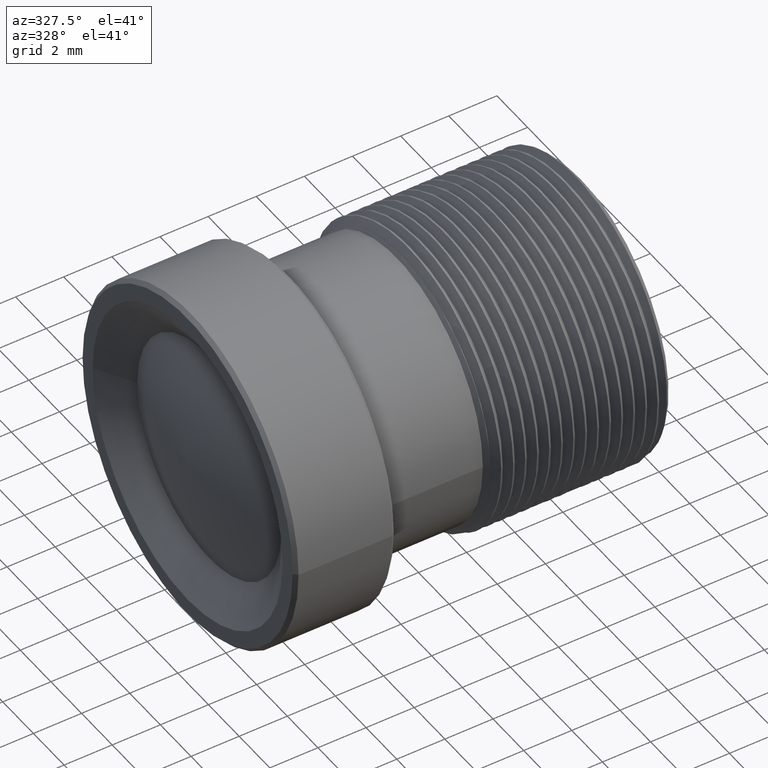
[diagram: clean part render]
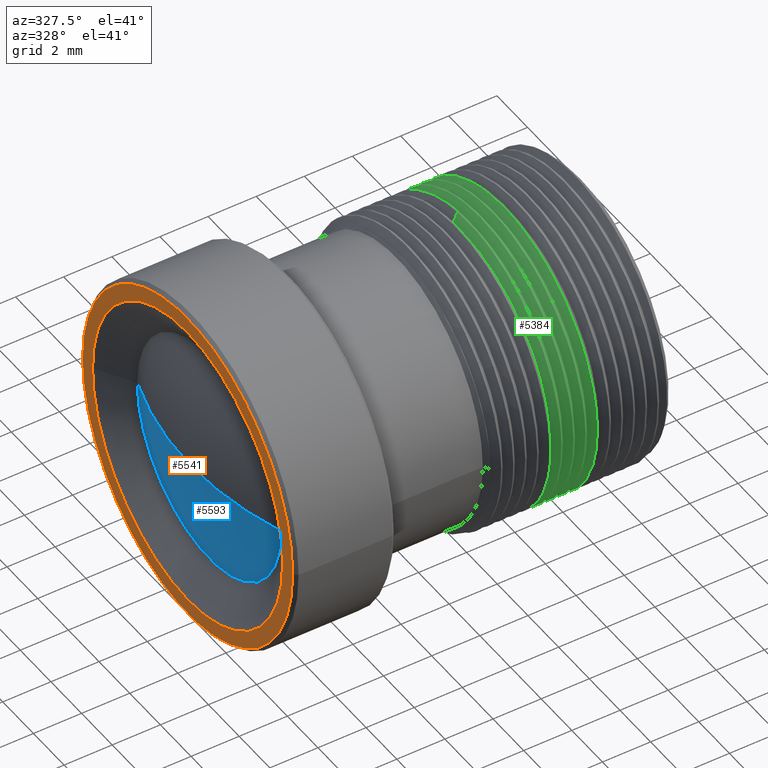
[diagram: same view with three faces highlighted in distinct colors, each labeled with its STEP entity id]
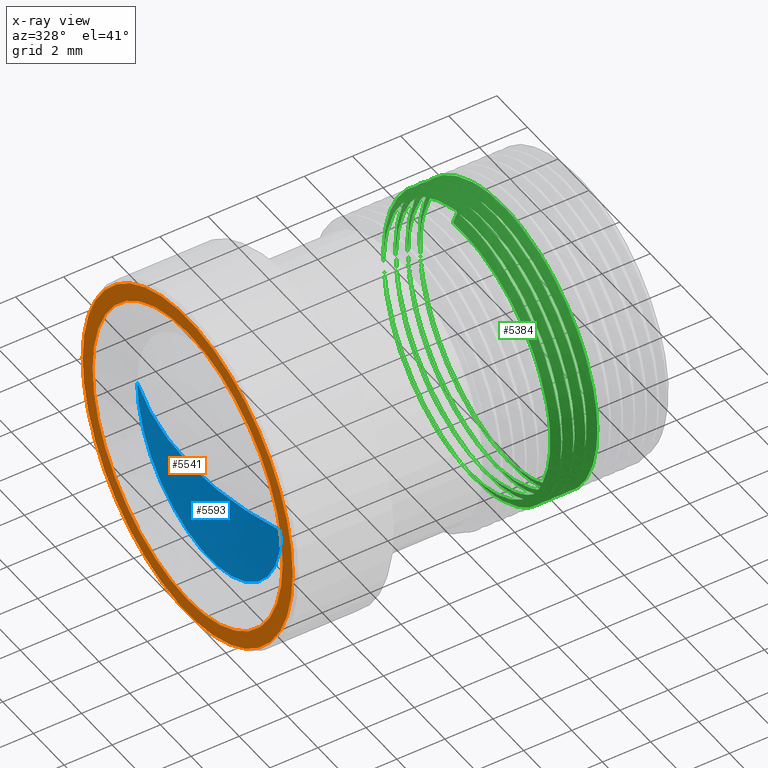
[diagram: x-ray of the same camera — body ghosted, the three highlighted faces saturated]
A machine part, auxiliary view with three faces highlighted in distinct colors.
The next image is the same camera in x-ray (body ghosted, the three faces saturated) — at least one of them is partly hidden behind the body in this view.
Their STEP definitions:

[orange] entity #5541 — the highlighted planar face has unit normal (-1, 0, 0).
#2496=CARTESIAN_POINT('',(-1.632E1,0.E0,0.E0));
#2497=DIRECTION('',(1.E0,0.E0,0.E0));
#2498=DIRECTION('',(0.E0,1.E0,0.E0));
#2499=AXIS2_PLACEMENT_3D('',#2496,#2497,#2498);
#2501=CARTESIAN_POINT('',(-1.632E1,0.E0,0.E0));
#2502=DIRECTION('',(-1.E0,0.E0,0.E0));
#2503=DIRECTION('',(0.E0,1.E0,0.E0));
#2504=AXIS2_PLACEMENT_3D('',#2501,#2502,#2503);
#2506=CARTESIAN_POINT('',(-1.632E1,0.E0,0.E0));
#2507=DIRECTION('',(-1.E0,0.E0,0.E0));
#2508=DIRECTION('',(0.E0,1.E0,0.E0));
#2509=AXIS2_PLACEMENT_3D('',#2506,#2507,#2508);
#2515=CARTESIAN_POINT('',(-1.632E1,0.E0,0.E0));
#2516=DIRECTION('',(1.E0,0.E0,0.E0));
#2517=DIRECTION('',(0.E0,1.E0,0.E0));
#2518=AXIS2_PLACEMENT_3D('',#2515,#2516,#2517);
#2558=CARTESIAN_POINT('',(-1.632E1,6.85E0,0.E0));
#2559=VERTEX_POINT('',#2558);
#2560=CARTESIAN_POINT('',(-1.632E1,6.2E0,0.E0));
#2562=VERTEX_POINT('',#2560);
#2580=CARTESIAN_POINT('',(-1.632E1,-6.85E0,0.E0));
#2581=VERTEX_POINT('',#2580);
#2582=CARTESIAN_POINT('',(-1.632E1,-6.2E0,0.E0));
#2584=VERTEX_POINT('',#2582);
#5526=CARTESIAN_POINT('',(-1.632E1,0.E0,0.E0));
#5527=DIRECTION('',(-1.E0,0.E0,0.E0));
#5528=DIRECTION('',(0.E0,1.E0,0.E0));
#5529=AXIS2_PLACEMENT_3D('',#5526,#5527,#5528);
#5530=PLANE('',#5529);
#5531=ORIENTED_EDGE('',*,*,#5521,.T.);
#5532=ORIENTED_EDGE('',*,*,#5505,.F.);
#5533=EDGE_LOOP('',(#5531,#5532));
#5534=FACE_OUTER_BOUND('',#5533,.F.);
#5536=ORIENTED_EDGE('',*,*,#5535,.T.);
#5538=ORIENTED_EDGE('',*,*,#5537,.F.);
#5539=EDGE_LOOP('',(#5536,#5538));
#5540=FACE_BOUND('',#5539,.F.);
#5541=ADVANCED_FACE('',(#5534,#5540),#5530,.T.);
#2500=CIRCLE('',#2499,6.85E0);
#2505=CIRCLE('',#2504,6.85E0);
#2510=CIRCLE('',#2509,6.2E0);
#2519=CIRCLE('',#2518,6.2E0);
#5505=EDGE_CURVE('',#2559,#2581,#2505,.T.);
#5521=EDGE_CURVE('',#2559,#2581,#2500,.T.);
#5535=EDGE_CURVE('',#2562,#2584,#2510,.T.);
#5537=EDGE_CURVE('',#2562,#2584,#2519,.T.);

[blue] entity #5593 — the highlighted spherical surface has radius 14.2063 mm.
#2524=CARTESIAN_POINT('',(-2.01375E0,0.E0,0.E0));
#2525=DIRECTION('',(0.E0,0.E0,1.E0));
#2526=DIRECTION('',(-9.436867575891E-1,3.308402991641E-1,0.E0));
#2527=AXIS2_PLACEMENT_3D('',#2524,#2525,#2526);
#2534=CARTESIAN_POINT('',(-2.01375E0,0.E0,0.E0));
#2535=DIRECTION('',(0.E0,0.E0,-1.E0));
#2536=DIRECTION('',(-9.436867575891E-1,-3.308402991641E-1,0.E0));
#2537=AXIS2_PLACEMENT_3D('',#2534,#2535,#2536);
#2539=CARTESIAN_POINT('',(-1.542E1,0.E0,0.E0));
#2540=DIRECTION('',(-1.E0,0.E0,0.E0));
#2541=DIRECTION('',(0.E0,1.E0,0.E0));
#2542=AXIS2_PLACEMENT_3D('',#2539,#2540,#2541);
#2561=CARTESIAN_POINT('',(-1.542E1,4.700000000001E0,0.E0));
#2563=VERTEX_POINT('',#2561);
#2564=CARTESIAN_POINT('',(-1.622E1,0.E0,0.E0));
#2565=VERTEX_POINT('',#2564);
#2583=CARTESIAN_POINT('',(-1.542E1,-4.700000000001E0,0.E0));
#2585=VERTEX_POINT('',#2583);
#5583=CARTESIAN_POINT('',(-2.01375E0,0.E0,0.E0));
#5584=DIRECTION('',(-1.E0,0.E0,0.E0));
#5585=DIRECTION('',(0.E0,1.E0,0.E0));
#5586=AXIS2_PLACEMENT_3D('',#5583,#5584,#5585);
#5587=SPHERICAL_SURFACE('',#5586,1.420625E1);
#5588=ORIENTED_EDGE('',*,*,#5575,.T.);
#5589=ORIENTED_EDGE('',*,*,#5578,.F.);
#5590=ORIENTED_EDGE('',*,*,#5549,.F.);
#5591=EDGE_LOOP('',(#5588,#5589,#5590));
#5592=FACE_OUTER_BOUND('',#5591,.F.);
#5593=ADVANCED_FACE('',(#5592),#5587,.T.);
#2528=CIRCLE('',#2527,1.420625E1);
#2538=CIRCLE('',#2537,1.420625E1);
#2543=CIRCLE('',#2542,4.700000000001E0);
#5549=EDGE_CURVE('',#2563,#2585,#2543,.T.);
#5575=EDGE_CURVE('',#2563,#2565,#2528,.T.);
#5578=EDGE_CURVE('',#2585,#2565,#2538,.T.);

[green] entity #5384 — the highlighted face is a freeform B-spline surface patch.
#502=CARTESIAN_POINT('',(-3.116249202424E0,-6.E0,0.E0));
#503=CARTESIAN_POINT('',(-3.112295908719E0,-6.E0,-2.980713230797E-1));
#504=CARTESIAN_POINT('',(-3.104379647365E0,-5.955653367330E0,
-8.949803333567E-1));
#505=CARTESIAN_POINT('',(-3.092422757761E0,-5.754568422300E0,
-1.776384624197E0));
#506=CARTESIAN_POINT('',(-3.080543797812E0,-5.426169523805E0,
-2.612367453216E0));
#507=CARTESIAN_POINT('',(-3.068665652027E0,-4.977402375076E0,
-3.390284926379E0));
#508=CARTESIAN_POINT('',(-3.056791550175E0,-4.418031649277E0,
-4.092492703413E0));
#509=CARTESIAN_POINT('',(-3.044915534317E0,-3.760588007056E0,
-4.704120833732E0));
#510=CARTESIAN_POINT('',(-3.032955856197E0,-3.013872353915E0,
-5.214107288960E0));
#511=CARTESIAN_POINT('',(-3.021085819949E0,-2.205437788282E0,
-5.603932831415E0));
#512=CARTESIAN_POINT('',(-3.009199178209E0,-1.346945356004E0,
-5.869711802825E0));
#513=CARTESIAN_POINT('',(-2.997326514071E0,-4.594998197193E-1,
-6.005020062042E0));
#514=CARTESIAN_POINT('',(-2.985288191170E0,4.507594585119E-1,
-6.006227664587E0));
#515=CARTESIAN_POINT('',(-2.973242326992E0,1.351205682173E0,-5.869071444158E0));
#516=CARTESIAN_POINT('',(-2.961368194979E0,2.208577580196E0,-5.602659028727E0));
#517=CARTESIAN_POINT('',(-2.949481062944E0,3.017814212687E0,-5.211665527395E0));
#518=CARTESIAN_POINT('',(-2.937607431461E0,3.759025110233E0,-4.705125517886E0));
#519=CARTESIAN_POINT('',(-2.925710446762E0,4.417964642130E0,-4.092814906253E0));
#520=CARTESIAN_POINT('',(-2.913813492756E0,4.978225465077E0,-3.389079378125E0));
#521=CARTESIAN_POINT('',(-2.901940707818E0,5.426651133831E0,-2.611423943974E0));
#522=CARTESIAN_POINT('',(-2.890058933455E0,5.754813236070E0,-1.775143061347E0));
#523=CARTESIAN_POINT('',(-2.878158307901E0,5.955108224208E0,
-8.979214623316E-1));
#524=CARTESIAN_POINT('',(-2.870220097951E0,6.E0,-2.993984691924E-1));
#525=CARTESIAN_POINT('',(-2.866249202424E0,6.E0,0.E0));
#527=CARTESIAN_POINT('',(-3.616249202424E0,-6.E0,0.E0));
#528=CARTESIAN_POINT('',(-3.612294639201E0,-6.E0,-2.981670424838E-1));
#529=CARTESIAN_POINT('',(-3.604375840453E0,-5.955624906145E0,
-8.952674169950E-1));
#530=CARTESIAN_POINT('',(-3.592415108805E0,-5.754411369931E0,
-1.776941966798E0));
#531=CARTESIAN_POINT('',(-3.580532393498E0,-5.425807856370E0,
-2.613151229067E0));
#532=CARTESIAN_POINT('',(-3.568650451899E0,-4.976766478512E0,
-3.391243591545E0));
#533=CARTESIAN_POINT('',(-3.556772563272E0,-4.417065726415E0,
-4.093556622439E0));
#534=CARTESIAN_POINT('',(-3.544892629957E0,-3.759243032152E0,
-4.705214383270E0));
#535=CARTESIAN_POINT('',(-3.532929153232E0,-3.012129730397E0,
-5.215131059858E0));
#536=CARTESIAN_POINT('',(-3.521055375550E0,-2.203298441356E0,
-5.604787575042E0));
#537=CARTESIAN_POINT('',(-3.509165064745E0,-1.344433370404E0,
-5.870307938824E0));
#538=CARTESIAN_POINT('',(-3.497288016907E0,-4.565923240752E-1,
-6.005241639641E0));
#539=CARTESIAN_POINT('',(-3.485262542190E0,4.526876671094E-1,
-6.005965659048E0));
#540=CARTESIAN_POINT('',(-3.473257225309E0,1.350073425383E0,-5.869184409501E0));
#541=CARTESIAN_POINT('',(-3.461403649154E0,2.206078760958E0,-5.603640910168E0));
#542=CARTESIAN_POINT('',(-3.449506475564E0,3.016165594754E0,-5.212658973350E0));
#543=CARTESIAN_POINT('',(-3.437630655512E0,3.757655981089E0,-4.706225394652E0));
#544=CARTESIAN_POINT('',(-3.425729538148E0,4.416995310854E0,-4.093887528669E0));
#545=CARTESIAN_POINT('',(-3.413828671415E0,4.977590391033E0,-3.390036264266E0));
#546=CARTESIAN_POINT('',(-3.401952118420E0,5.426289567604E0,-2.612208392044E0));
#547=CARTESIAN_POINT('',(-3.390066533754E0,5.754657319225E0,-1.775696868074E0));
#548=CARTESIAN_POINT('',(-3.378162131255E0,5.955079225532E0,
-8.982097202797E-1));
#549=CARTESIAN_POINT('',(-3.370221374384E0,6.E0,-2.994947099793E-1));
#550=CARTESIAN_POINT('',(-3.366249202424E0,6.E0,0.E0));
#577=CARTESIAN_POINT('',(-4.116249202424E0,-6.E0,0.E0));
#578=CARTESIAN_POINT('',(-4.112291766314E0,-6.E0,-2.983836530169E-1));
#579=CARTESIAN_POINT('',(-4.104367226132E0,-5.955560496909E0,
-8.959170451895E-1));
#580=CARTESIAN_POINT('',(-4.092397795806E0,-5.754055654789E0,
-1.778203401059E0));
#581=CARTESIAN_POINT('',(-4.080506593925E0,-5.424989357325E0,
-2.614924249608E0));
#582=CARTESIAN_POINT('',(-4.068616015188E0,-4.975325186590E0,
-3.393414942662E0));
#583=CARTESIAN_POINT('',(-4.056729558363E0,-4.414877078287E0,
-4.095966126446E0));
#584=CARTESIAN_POINT('',(-4.044840738150E0,-3.756194378051E0,
-4.707688339032E0));
#585=CARTESIAN_POINT('',(-4.032868742939E0,-3.008186893279E0,
-5.217452431332E0));
#586=CARTESIAN_POINT('',(-4.020986219595E0,-2.198435684068E0,
-5.606700591486E0));
#587=CARTESIAN_POINT('',(-4.009088827416E0,-1.338822286082E0,
-5.871721081278E0));
#588=CARTESIAN_POINT('',(-3.997197224160E0,-4.497279500825E-1,
-6.005485493069E0));
#589=CARTESIAN_POINT('',(-3.985303129636E0,4.496045828941E-1,
-6.005834989905E0));
#590=CARTESIAN_POINT('',(-3.973305039719E0,1.346566337782E0,-5.870138198330E0));
#591=CARTESIAN_POINT('',(-3.961419363156E0,2.204997315972E0,-5.604130221900E0));
#592=CARTESIAN_POINT('',(-3.949519772192E0,3.015301145682E0,-5.213171550840E0));
#593=CARTESIAN_POINT('',(-3.937633657924E0,3.757502460453E0,-4.706400372336E0));
#594=CARTESIAN_POINT('',(-3.925724473366E0,4.417281226709E0,-4.093627337644E0));
#595=CARTESIAN_POINT('',(-3.913814428241E0,4.978214674888E0,-3.389160091613E0));
#596=CARTESIAN_POINT('',(-3.901931170771E0,5.427028413462E0,-2.610801675417E0));
#597=CARTESIAN_POINT('',(-3.890029947845E0,5.755478839647E0,-1.773053664028E0));
#598=CARTESIAN_POINT('',(-3.878140983723E0,5.955240283157E0,
-8.966119400400E-1));
#599=CARTESIAN_POINT('',(-3.870212908709E0,6.E0,-2.988564130929E-1));
#600=CARTESIAN_POINT('',(-3.866249202424E0,6.E0,0.E0));
#627=CARTESIAN_POINT('',(-4.616249202424E0,-6.E0,0.E0));
#628=CARTESIAN_POINT('',(-4.612295891457E0,-6.E0,-2.980726245602E-1));
#629=CARTESIAN_POINT('',(-4.604379595585E0,-5.955652979174E0,
-8.949842374775E-1));
#630=CARTESIAN_POINT('',(-4.592422653818E0,-5.754566291493E0,
-1.776392200271E0));
#631=CARTESIAN_POINT('',(-4.580543642518E0,-5.426164590756E0,
-2.612378119377E0));
#632=CARTESIAN_POINT('',(-4.568665446248E0,-4.977393791736E0,
-3.390297926319E0));
#633=CARTESIAN_POINT('',(-4.556791288028E0,-4.418018260248E0,
-4.092507344091E0));
#634=CARTESIAN_POINT('',(-4.544915237190E0,-3.760570650930E0,
-4.704135088953E0));
#635=CARTESIAN_POINT('',(-4.532955438963E0,-3.013845147108E0,
-5.214123548604E0));
#636=CARTESIAN_POINT('',(-4.521085621249E0,-2.205422675538E0,
-5.603935244623E0));
#637=CARTESIAN_POINT('',(-4.509200021246E0,-1.347007124212E0,
-5.869696078271E0));
#638=CARTESIAN_POINT('',(-4.497327026540E0,-4.595387288691E-1,
-6.005018380929E0));
#639=CARTESIAN_POINT('',(-4.485288732416E0,4.507186816968E-1,
-6.006230447069E0));
#640=CARTESIAN_POINT('',(-4.473242791716E0,1.351171448543E0,-5.869079728569E0));
#641=CARTESIAN_POINT('',(-4.461368608551E0,2.208548533372E0,-5.602670630336E0));
#642=CARTESIAN_POINT('',(-4.449481425189E0,3.017790587673E0,-5.211679450297E0));
#643=CARTESIAN_POINT('',(-4.437607741157E0,3.759006918265E0,-4.705140293014E0));
#644=CARTESIAN_POINT('',(-4.425710706479E0,4.417951427954E0,-4.092829458602E0));
#645=CARTESIAN_POINT('',(-4.413813698941E0,4.978216847667E0,-3.389092388426E0));
#646=CARTESIAN_POINT('',(-4.401940862989E0,5.426646215679E0,-2.611434608889E0));
#647=CARTESIAN_POINT('',(-4.390059036509E0,5.754811123690E0,-1.775150571760E0));
#648=CARTESIAN_POINT('',(-4.378158359854E0,5.955107829269E0,
-8.979253787902E-1));
#649=CARTESIAN_POINT('',(-4.370220115291E0,6.E0,-2.993997766179E-1));
#650=CARTESIAN_POINT('',(-4.366249202424E0,6.E0,0.E0));
#1163=CARTESIAN_POINT('',(-2.829592579855E0,5.374607244022E0,2.667132724952E0));
#1185=CARTESIAN_POINT('',(-2.866249202424E0,6.E0,0.E0));
#1186=CARTESIAN_POINT('',(-2.863192617219E0,6.E0,2.304610949671E-1));
#1187=CARTESIAN_POINT('',(-2.857080946867E0,5.973410820495E0,
6.912682449163E-1));
#1188=CARTESIAN_POINT('',(-2.847919870644E0,5.854454789387E0,1.372839405649E0));
#1189=CARTESIAN_POINT('',(-2.838759436325E0,5.658034904989E0,2.036195894697E0));
#1190=CARTESIAN_POINT('',(-2.832648605425E0,5.477033541911E0,2.460730877205E0));
#1191=CARTESIAN_POINT('',(-2.829592579855E0,5.374607244022E0,2.667132724952E0));
#1252=CARTESIAN_POINT('',(-3.366249202424E0,6.E0,0.E0));
#1253=CARTESIAN_POINT('',(-3.362281874784E0,6.E0,2.991294568272E-1));
#1254=CARTESIAN_POINT('',(-3.354346678209E0,5.955101548564E0,
8.974124875202E-1));
#1255=CARTESIAN_POINT('',(-3.342467998471E0,5.755476084889E0,1.773084744365E0));
#1256=CARTESIAN_POINT('',(-3.330536216831E0,5.426210238775E0,2.613017990503E0));
#1257=CARTESIAN_POINT('',(-3.318599551278E0,4.974657624795E0,3.394459758018E0));
#1258=CARTESIAN_POINT('',(-3.306703983930E0,4.413700387558E0,4.097542907584E0));
#1259=CARTESIAN_POINT('',(-3.294760684368E0,3.751370922177E0,4.711323448768E0));
#1260=CARTESIAN_POINT('',(-3.282894504181E0,3.009788292217E0,5.216374907290E0));
#1261=CARTESIAN_POINT('',(-3.270959553229E0,2.196613510059E0,5.607514030931E0));
#1262=CARTESIAN_POINT('',(-3.259095290982E0,1.339284009854E0,5.871593190447E0));
#1263=CARTESIAN_POINT('',(-3.247142945764E0,4.456534007026E-1,
6.006106831791E0));
#1264=CARTESIAN_POINT('',(-3.235222110945E0,-4.556985179947E-1,
6.005112923932E0));
#1265=CARTESIAN_POINT('',(-3.223338869365E0,-1.344018900213E0,
5.870450966122E0));
#1266=CARTESIAN_POINT('',(-3.211446537571E0,-2.203105189351E0,
5.604972794542E0));
#1267=CARTESIAN_POINT('',(-3.199546236354E0,-3.013559504941E0,
5.214151913348E0));
#1268=CARTESIAN_POINT('',(-3.187658657024E0,-3.756045836064E0,
4.707600085199E0));
#1269=CARTESIAN_POINT('',(-3.175755908415E0,-4.415544870162E0,
4.095274870266E0));
#1270=CARTESIAN_POINT('',(-3.163883828477E0,-4.975331769457E0,
3.393541841319E0));
#1271=CARTESIAN_POINT('',(-3.151930429843E0,-5.427207785630E0,
2.610836874964E0));
#1272=CARTESIAN_POINT('',(-3.140033828905E0,-5.755345650532E0,
1.773308742865E0));
#1273=CARTESIAN_POINT('',(-3.128140949212E0,-5.955266230422E0,
8.966191591529E-1));
#1274=CARTESIAN_POINT('',(-3.120212918451E0,-6.E0,2.988571476644E-1));
#1275=CARTESIAN_POINT('',(-3.116249202424E0,-6.E0,0.E0));
#1289=CARTESIAN_POINT('',(-4.748764268571E0,5.657807890574E-1,
5.973264777216E0));
#1290=CARTESIAN_POINT('',(-4.744748163762E0,2.643228898414E-1,
6.001818523693E0));
#1291=CARTESIAN_POINT('',(-4.736717767385E0,-3.427847983199E-1,
6.013182896159E0));
#1292=CARTESIAN_POINT('',(-4.724679150516E0,-1.245077514606E0,
5.892811272833E0));
#1293=CARTESIAN_POINT('',(-4.712642897431E0,-2.118793757554E0,
5.637983824487E0));
#1294=CARTESIAN_POINT('',(-4.700589052152E0,-2.945253187368E0,
5.253695003690E0));
#1295=CARTESIAN_POINT('',(-4.688555143594E0,-3.703119339112E0,
4.750054531968E0));
#1296=CARTESIAN_POINT('',(-4.676501486278E0,-4.377399845198E0,
4.136860064345E0));
#1297=CARTESIAN_POINT('',(-4.664480248823E0,-4.950213388143E0,
3.431051134538E0));
#1298=CARTESIAN_POINT('',(-4.652381171705E0,-5.412845539877E0,
2.641785532603E0));
#1299=CARTESIAN_POINT('',(-4.640331373497E0,-5.749222697375E0,
1.794987506427E0));
#1300=CARTESIAN_POINT('',(-4.628290634048E0,-5.954123372974E0,
9.079031288607E-1));
#1301=CARTESIAN_POINT('',(-4.620262757152E0,-6.E0,3.026148971405E-1));
#1302=CARTESIAN_POINT('',(-4.616249202424E0,-6.E0,0.E0));
#1351=CARTESIAN_POINT('',(-3.866249202424E0,6.E0,0.E0));
#1352=CARTESIAN_POINT('',(-3.862281234949E0,6.E0,2.991776992275E-1));
#1353=CARTESIAN_POINT('',(-3.854344885721E0,5.955093219817E0,
8.975498036015E-1));
#1354=CARTESIAN_POINT('',(-3.842463720939E0,5.755375937592E0,1.773389997733E0));
#1355=CARTESIAN_POINT('',(-3.830532109522E0,5.426108149435E0,2.613317604074E0));
#1356=CARTESIAN_POINT('',(-3.818585507358E0,4.974029221716E0,3.395316680739E0));
#1357=CARTESIAN_POINT('',(-3.806720097884E0,4.414439134596E0,4.096566551801E0));
#1358=CARTESIAN_POINT('',(-3.794793522378E0,3.753315006619E0,4.709771862867E0));
#1359=CARTESIAN_POINT('',(-3.782920212480E0,3.011484948113E0,5.215420869889E0));
#1360=CARTESIAN_POINT('',(-3.770984840640E0,2.198394360974E0,5.606816333730E0));
#1361=CARTESIAN_POINT('',(-3.759118148390E0,1.340973320121E0,5.871217552520E0));
#1362=CARTESIAN_POINT('',(-3.747164219336E0,4.472591137882E-1,
6.005993732465E0));
#1363=CARTESIAN_POINT('',(-3.735241207967E0,-4.542578349366E-1,
6.005230238721E0));
#1364=CARTESIAN_POINT('',(-3.723356112812E0,-1.342748411247E0,
5.870748632048E0));
#1365=CARTESIAN_POINT('',(-3.711461879064E0,-2.202027220178E0,
5.605404237096E0));
#1366=CARTESIAN_POINT('',(-3.699559663260E0,-3.012683285205E0,
5.214666509466E0));
#1367=CARTESIAN_POINT('',(-3.687670178347E0,-3.755368742770E0,
4.708149507757E0));
#1368=CARTESIAN_POINT('',(-3.675765496554E0,-4.415056736514E0,
4.095811805335E0));
#1369=CARTESIAN_POINT('',(-3.663891506088E0,-4.975010225061E0,
3.394025862679E0));
#1370=CARTESIAN_POINT('',(-3.651936215772E0,-5.427024522567E0,
2.611234633937E0));
#1371=CARTESIAN_POINT('',(-3.640037658759E0,-5.755267278820E0,
1.773587885327E0));
#1372=CARTESIAN_POINT('',(-3.628142871751E0,-5.955251674489E0,
8.967640981751E-1));
#1373=CARTESIAN_POINT('',(-3.620213558687E0,-6.E0,2.989054203275E-1));
#1374=CARTESIAN_POINT('',(-3.616249202424E0,-6.E0,0.E0));
#1409=CARTESIAN_POINT('',(-4.366249202424E0,6.E0,0.E0));
#1410=CARTESIAN_POINT('',(-4.362281872438E0,6.E0,2.991296336722E-1));
#1411=CARTESIAN_POINT('',(-4.354346671172E0,5.955101493913E0,
8.974130177708E-1));
#1412=CARTESIAN_POINT('',(-4.342467984843E0,5.755475806934E0,1.773085738033E0));
#1413=CARTESIAN_POINT('',(-4.330536195706E0,5.426209569371E0,2.613019442509E0));
#1414=CARTESIAN_POINT('',(-4.318599523546E0,4.974656463023E0,3.394461506207E0));
#1415=CARTESIAN_POINT('',(-4.306703948941E0,4.413698606113E0,4.097544866909E0));
#1416=CARTESIAN_POINT('',(-4.294760642478E0,3.751368457539E0,4.711325442808E0));
#1417=CARTESIAN_POINT('',(-4.282894455627E0,3.009785122983E0,5.216376767437E0));
#1418=CARTESIAN_POINT('',(-4.270959497261E0,2.196609575773E0,5.607515599259E0));
#1419=CARTESIAN_POINT('',(-4.259095228604E0,1.339279413264E0,5.871594267661E0));
#1420=CARTESIAN_POINT('',(-4.247142875441E0,4.456480948597E-1,
6.006107250764E0));
#1421=CARTESIAN_POINT('',(-4.235222035028E0,-4.557042473257E-1,
6.005112513824E0));
#1422=CARTESIAN_POINT('',(-4.223338783443E0,-1.344025254650E0,
5.870449566422E0));
#1423=CARTESIAN_POINT('',(-4.211446446202E0,-2.203111596992E0,
5.604970204640E0));
#1424=CARTESIAN_POINT('',(-4.199546171717E0,-3.013563730881E0,
5.214149438776E0));
#1425=CARTESIAN_POINT('',(-4.187658577104E0,-3.756050584893E0,
4.707596356715E0));
#1426=CARTESIAN_POINT('',(-4.175755822315E0,-4.415549373637E0,
4.095270136677E0));
#1427=CARTESIAN_POINT('',(-4.163883739209E0,-4.975335341385E0,
3.393536113540E0));
#1428=CARTESIAN_POINT('',(-4.151930455758E0,-5.427206717451E0,
2.610838526189E0));
#1429=CARTESIAN_POINT('',(-4.140033840989E0,-5.755345485693E0,
1.773309664598E0));
#1430=CARTESIAN_POINT('',(-4.128140956695E0,-5.955266143315E0,
8.966197102912E-1));
#1431=CARTESIAN_POINT('',(-4.120212920830E0,-6.E0,2.988573270308E-1));
#1432=CARTESIAN_POINT('',(-4.116249202424E0,-6.E0,0.E0));
#1931=CARTESIAN_POINT('',(-3.045725066395E0,5.039274347679E0,2.500724780895E0));
#1937=CARTESIAN_POINT('',(-3.045725066395E0,5.039274347679E0,2.500724780895E0));
#1938=CARTESIAN_POINT('',(-3.049825860602E0,5.168141946696E0,2.241040392220E0));
#1939=CARTESIAN_POINT('',(-3.058027449015E0,5.385649457008E0,1.701712313329E0));
#1940=CARTESIAN_POINT('',(-3.070329831635E0,5.583450910411E0,
8.521278902082E-1));
#1941=CARTESIAN_POINT('',(-3.082632214255E0,5.648073059669E0,
-1.778125902745E-2));
#1942=CARTESIAN_POINT('',(-3.094934596875E0,5.577974894465E0,
-8.872664461889E-1));
#1943=CARTESIAN_POINT('',(-3.107236979495E0,5.374828324429E0,
-1.735588108216E0));
#1944=CARTESIAN_POINT('',(-3.119539362115E0,5.043478921281E0,
-2.542511748609E0));
#1945=CARTESIAN_POINT('',(-3.131841744735E0,4.591830173590E0,
-3.288790244330E0));
#1946=CARTESIAN_POINT('',(-3.144144127355E0,4.030655013789E0,
-3.956623026793E0));
#1947=CARTESIAN_POINT('',(-3.156446509975E0,3.373338845362E0,
-4.530080644991E0));
#1948=CARTESIAN_POINT('',(-3.168748892595E0,2.635560271341E0,
-4.995484728436E0));
#1949=CARTESIAN_POINT('',(-3.181051275215E0,1.834917120309E0,
-5.341734248113E0));
#1950=CARTESIAN_POINT('',(-3.193353657835E0,9.905066952563E-1,
-5.560570303713E0));
#1951=CARTESIAN_POINT('',(-3.205656040455E0,1.224702559951E-1,
-5.646773118541E0));
#1952=CARTESIAN_POINT('',(-3.217958423075E0,-7.484873992678E-1,
-5.598286544025E0));
#1953=CARTESIAN_POINT('',(-3.230260805695E0,-1.601591794160E0,
-5.416267103897E0));
#1954=CARTESIAN_POINT('',(-3.242563188315E0,-2.416494296360E0,
-5.105056408262E0));
#1955=CARTESIAN_POINT('',(-3.254865570935E0,-3.173757482388E0,
-4.672077595552E0));
#1956=CARTESIAN_POINT('',(-3.267167953555E0,-3.855318767835E0,
-4.127658272466E0));
#1957=CARTESIAN_POINT('',(-3.279470336175E0,-4.444921244301E0,
-3.484784175216E0));
#1958=CARTESIAN_POINT('',(-3.291772718795E0,-4.928501446539E0,
-2.758789427871E0));
#1959=CARTESIAN_POINT('',(-3.304075101415E0,-5.294524800596E0,
-1.966990785883E0));
#1960=CARTESIAN_POINT('',(-3.316377484035E0,-5.534260751691E0,
-1.128274588995E0));
#1961=CARTESIAN_POINT('',(-3.328679866655E0,-5.641991009363E0,
-2.626462757158E-1));
#1962=CARTESIAN_POINT('',(-3.340982249275E0,-5.615145942725E0,
6.092467954612E-1));
#1963=CARTESIAN_POINT('',(-3.353284631895E0,-5.454365872462E0,
1.466607836199E0));
#1964=CARTESIAN_POINT('',(-3.365587014515E0,-5.163485797613E0,
2.288986682733E0));
#1965=CARTESIAN_POINT('',(-3.377889397135E0,-4.749443921437E0,
3.056767582431E0));
#1966=CARTESIAN_POINT('',(-3.390191779755E0,-4.222116158247E0,
3.751637077616E0));
#1967=CARTESIAN_POINT('',(-3.402494162375E0,-3.594080568631E0,
4.357020826444E0));
#1968=CARTESIAN_POINT('',(-3.414796544995E0,-2.880317341853E0,
4.858478941613E0));
#1969=CARTESIAN_POINT('',(-3.427098927615E0,-2.097851481598E0,
5.244050417095E0));
#1970=CARTESIAN_POINT('',(-3.439401310235E0,-1.265346717875E0,
5.504538427465E0));
#1971=CARTESIAN_POINT('',(-3.451703692855E0,-4.026603312736E-1,
5.633729694749E0));
#1972=CARTESIAN_POINT('',(-3.464006075475E0,4.696304918780E-1,
5.628542690340E0));
#1973=CARTESIAN_POINT('',(-3.476308458094E0,1.330719475884E0,5.489101137015E0));
#1974=CARTESIAN_POINT('',(-3.488610840714E0,2.160067536386E0,5.218731057846E0));
#1975=CARTESIAN_POINT('',(-3.500913223334E0,2.937892687909E0,4.823881442387E0));
#1976=CARTESIAN_POINT('',(-3.513215605954E0,3.645641892730E0,4.313970422459E0));
#1977=CARTESIAN_POINT('',(-3.525517988574E0,4.266433596339E0,3.701160626601E0));
#1978=CARTESIAN_POINT('',(-3.537820371194E0,4.785460393922E0,3.000069071552E0));
#1979=CARTESIAN_POINT('',(-3.550122753814E0,5.190342223280E0,2.227418510545E0));
#1980=CARTESIAN_POINT('',(-3.562425136434E0,5.471421659685E0,1.401638554625E0));
#1981=CARTESIAN_POINT('',(-3.574727519054E0,5.621994269144E0,
5.424260812225E-1));
#1982=CARTESIAN_POINT('',(-3.587029901674E0,5.638468525595E0,
-3.297245846853E-1));
#1983=CARTESIAN_POINT('',(-3.599332284294E0,5.520451477615E0,
-1.194010510497E0));
#1984=CARTESIAN_POINT('',(-3.611634666914E0,5.270758121270E0,
-2.029816356950E0));
#1985=CARTESIAN_POINT('',(-3.623937049534E0,4.895344255560E0,
-2.817206104535E0));
#1986=CARTESIAN_POINT('',(-3.636239432154E0,4.403164422002E0,
-3.537398576454E0));
#1987=CARTESIAN_POINT('',(-3.648541814774E0,3.805958316849E0,
-4.173215415754E0));
#1988=CARTESIAN_POINT('',(-3.660844197394E0,3.117970770544E0,
-4.709490831280E0));
#1989=CARTESIAN_POINT('',(-3.673146580014E0,2.355611973568E0,
-5.133433338990E0));
#1990=CARTESIAN_POINT('',(-3.685448962634E0,1.537066053153E0,
-5.434930870225E0));
#1991=CARTESIAN_POINT('',(-3.697751345254E0,6.818573372371E-1,
-5.606791969347E0));
#1992=CARTESIAN_POINT('',(-3.710053727874E0,-1.896153486385E-1,
-5.644917327600E0));
#1993=CARTESIAN_POINT('',(-3.722356110494E0,-1.056565243359E0,
-5.548397561675E0));
#1994=CARTESIAN_POINT('',(-3.734658493114E0,-1.898313465470E0,
-5.319534904735E0));
#1995=CARTESIAN_POINT('',(-3.746960875734E0,-2.694782255226E0,
-4.963788292504E0));
#1996=CARTESIAN_POINT('',(-3.759263258354E0,-3.426973878404E0,
-4.489643154263E0));
#1997=CARTESIAN_POINT('',(-3.771565640974E0,-4.077423768863E0,
-3.908409014547E0));
#1998=CARTESIAN_POINT('',(-3.783868023594E0,-4.630617101285E0,
-3.233949733246E0));
#1999=CARTESIAN_POINT('',(-3.796170406214E0,-5.073358857814E0,
-2.482352818541E0));
#2000=CARTESIAN_POINT('',(-3.808472788834E0,-5.395088561595E0,
-1.671545700371E0));
#2001=CARTESIAN_POINT('',(-3.820775171454E0,-5.588132170049E0,
-8.208681172619E-1));
#2002=CARTESIAN_POINT('',(-3.833077554074E0,-5.647885119617E0,
4.938918387798E-2));
#2003=CARTESIAN_POINT('',(-3.845379936694E0,-5.572922155888E0,
9.184684318400E-1));
#2004=CARTESIAN_POINT('',(-3.857682319314E0,-5.365031329418E0,
1.765639954873E0));
#2005=CARTESIAN_POINT('',(-3.869984701934E0,-5.029171346333E0,
2.570696634202E0));
#2006=CARTESIAN_POINT('',(-3.882287084554E0,-4.573353291033E0,
3.314435893373E0));
#2007=CARTESIAN_POINT('',(-3.894589467174E0,-4.008449542171E0,
3.979117726802E0));
#2008=CARTESIAN_POINT('',(-3.906891849793E0,-3.347934439759E0,
4.548887842424E0));
#2009=CARTESIAN_POINT('',(-3.919194232413E0,-2.607562889110E0,
5.010155825442E0));
#2010=CARTESIAN_POINT('',(-3.931496615033E0,-1.804994567696E0,
5.351919303060E0));
#2011=CARTESIAN_POINT('',(-3.943798997653E0,-9.593726985332E-1,
5.566026378053E0));
#2012=CARTESIAN_POINT('',(-3.956101380273E0,-9.086743735030E-2,
5.647370071521E0));
#2013=CARTESIAN_POINT('',(-3.968403762893E0,7.798052350941E-1,
5.594010136851E0));
#2014=CARTESIAN_POINT('',(-3.980706145513E0,1.631877639967E0,5.407219339370E0));
#2015=CARTESIAN_POINT('',(-3.993008528133E0,2.445025760439E0,5.091453097758E0));
#2016=CARTESIAN_POINT('',(-4.005310910753E0,3.199854019339E0,4.654243211393E0));
#2017=CARTESIAN_POINT('',(-4.017613293373E0,3.878357911241E0,4.106018208458E0));
#2018=CARTESIAN_POINT('',(-4.029915675993E0,4.464353454082E0,3.459854599966E0));
#2019=CARTESIAN_POINT('',(-4.042218058613E0,4.943863216828E0,2.731164972895E0));
#2020=CARTESIAN_POINT('',(-4.054520441233E0,5.305449715492E0,1.937330362190E0));
#2021=CARTESIAN_POINT('',(-4.066822823853E0,5.540488225177E0,1.097285670441E0));
#2022=CARTESIAN_POINT('',(-4.079125206473E0,5.643372500921E0,
2.310680240189E-1));
#2023=CARTESIAN_POINT('',(-4.091427589093E0,5.611648500393E0,
-6.406611615427E-1));
#2024=CARTESIAN_POINT('',(-4.103729971713E0,5.446072918819E0,
-1.497109006981E0));
#2025=CARTESIAN_POINT('',(-4.116032354333E0,5.150595139944E0,
-2.317847130477E0));
#2026=CARTESIAN_POINT('',(-4.128334736953E0,4.732263033546E0,
-3.083298914671E0));
#2027=CARTESIAN_POINT('',(-4.140637119573E0,4.201054846451E0,
-3.775206457001E0));
#2028=CARTESIAN_POINT('',(-4.152939502193E0,3.569641196876E0,
-4.377066065464E0));
#2029=CARTESIAN_POINT('',(-4.165241884813E0,2.853082849101E0,
-4.874521912151E0));
#2030=CARTESIAN_POINT('',(-4.177544267433E0,2.068471477302E0,
-5.255708454953E0));
#2031=CARTESIAN_POINT('',(-4.189846650053E0,1.234521987200E0,
-5.511533459845E0));
#2032=CARTESIAN_POINT('',(-4.202149032673E0,3.711261196548E-1,
-5.635894872972E0));
#2033=CARTESIAN_POINT('',(-4.214451415293E0,-5.011220161466E-1,
-5.625826369593E0));
#2034=CARTESIAN_POINT('',(-4.226753797913E0,-1.361417162705E0,
-5.481568108212E0));
#2035=CARTESIAN_POINT('',(-4.239056180533E0,-2.189239170635E0,
-5.206561002200E0));
#2036=CARTESIAN_POINT('',(-4.251358563153E0,-2.964842454555E0,
-4.807364645577E0));
#2037=CARTESIAN_POINT('',(-4.263660945773E0,-3.669726973737E0,
-4.293500850601E0));
#2038=CARTESIAN_POINT('',(-4.275963328393E0,-4.287079503448E0,
-3.677226529192E0));
#2039=CARTESIAN_POINT('',(-4.288265711013E0,-4.802174671608E0,
-2.973241335521E0));
#2040=CARTESIAN_POINT('',(-4.300568093633E0,-5.202726195023E0,
-2.198337043199E0));
#2041=CARTESIAN_POINT('',(-4.312870476253E0,-5.479179937384E0,
-1.370997020291E0));
#2042=CARTESIAN_POINT('',(-4.325172858873E0,-5.624941798846E0,
-5.109553556540E-1));
#2043=CARTESIAN_POINT('',(-4.337475241493E0,-5.636535001488E0,
3.612738474927E-1));
#2044=CARTESIAN_POINT('',(-4.349777624112E0,-5.513683018989E0,
1.224885783240E0));
#2045=CARTESIAN_POINT('',(-4.362080006732E0,-5.259316172467E0,
2.059281188644E0));
#2046=CARTESIAN_POINT('',(-4.374382389352E0,-4.879501735123E0,
2.844557686672E0));
#2047=CARTESIAN_POINT('',(-4.386684771972E0,-4.383299212902E0,
3.561984506711E0));
#2048=CARTESIAN_POINT('',(-4.398987154592E0,-3.782544253050E0,
4.194449259390E0));
#2049=CARTESIAN_POINT('',(-4.411289537212E0,-3.091566334896E0,
4.726866109042E0));
#2050=CARTESIAN_POINT('',(-4.423591919832E0,-2.326846976628E0,
5.146535607885E0));
#2051=CARTESIAN_POINT('',(-4.435894302452E0,-1.506626610652E0,
5.443447609002E0));
#2052=CARTESIAN_POINT('',(-4.448196685072E0,-6.504695045416E-1,
5.610520032897E0));
#2053=CARTESIAN_POINT('',(-4.460499067692E0,2.212028947308E-1,
5.643767792463E0));
#2054=CARTESIAN_POINT('',(-4.472801450312E0,1.087599062395E0,5.542397847083E0));
#2055=CARTESIAN_POINT('',(-4.485103832932E0,1.928053324746E0,5.308828118598E0));
#2056=CARTESIAN_POINT('',(-4.497406215552E0,2.722518786152E0,4.948629817932E0));
#2057=CARTESIAN_POINT('',(-4.509708598172E0,3.452045496685E0,4.470394558056E0));
#2058=CARTESIAN_POINT('',(-4.522010980792E0,4.099232454907E0,3.885529422938E0));
#2059=CARTESIAN_POINT('',(-4.534313363412E0,4.648642664437E0,3.207984880614E0));
#2060=CARTESIAN_POINT('',(-4.546615746032E0,5.087171344180E0,2.453922030308E0));
#2061=CARTESIAN_POINT('',(-4.558918128652E0,5.404358509495E0,1.641327120572E0));
#2062=CARTESIAN_POINT('',(-4.571220511272E0,5.592638468490E0,
7.895825331451E-1));
#2063=CARTESIAN_POINT('',(-4.583522893892E0,5.647520282326E0,
-8.099553439348E-2));
#2064=CARTESIAN_POINT('',(-4.595825276512E0,5.567694885130E0,
-9.496416597701E-1));
#2065=CARTESIAN_POINT('',(-4.608127659132E0,5.355066308422E0,
-1.795636502270E0));
#2066=CARTESIAN_POINT('',(-4.620430041752E0,5.014706265292E0,
-2.598801009834E0));
#2067=CARTESIAN_POINT('',(-4.632732424372E0,4.554733177610E0,
-3.339977738946E0));
#2068=CARTESIAN_POINT('',(-4.645034806992E0,3.986118531743E0,
-4.001487806650E0));
#2069=CARTESIAN_POINT('',(-4.657337189612E0,3.322425181699E0,
-4.567552575274E0));
#2070=CARTESIAN_POINT('',(-4.669639572232E0,2.579483841791E0,
-5.024670011634E0));
#2071=CARTESIAN_POINT('',(-4.681941954852E0,1.775015485270E0,
-5.361936743652E0));
#2072=CARTESIAN_POINT('',(-4.694244337472E0,9.282086556483E-1,
-5.571308132518E0));
#2073=CARTESIAN_POINT('',(-4.706546720092E0,5.926177286905E-2,
-5.647790157057E0));
#2074=CARTESIAN_POINT('',(-4.718849102712E0,-8.110986485509E-1,
-5.589558533390E0));
#2075=CARTESIAN_POINT('',(-4.731151485332E0,-1.662112377731E0,
-5.398002228572E0));
#2076=CARTESIAN_POINT('',(-4.743453867952E0,-2.473480649856E0,
-5.077690330324E0));
#2077=CARTESIAN_POINT('',(-4.755756250572E0,-3.225850341501E0,
-4.636263063084E0));
#2078=CARTESIAN_POINT('',(-4.768058633192E0,-3.901275590101E0,
-4.084249549913E0));
#2079=CARTESIAN_POINT('',(-4.780361015811E0,-4.483645846785E0,
-3.434816667085E0));
#2080=CARTESIAN_POINT('',(-4.792663398431E0,-4.959070152489E0,
-2.703454981791E0));
#2081=CARTESIAN_POINT('',(-4.804965781051E0,-5.316208471395E0,
-1.907609264118E0));
#2082=CARTESIAN_POINT('',(-4.817268163671E0,-5.546542178604E0,
-1.066262386491E0));
#2083=CARTESIAN_POINT('',(-4.829570546291E0,-5.644577250234E0,
-1.994825356066E-1));
#2084=CARTESIAN_POINT('',(-4.841872928911E0,-5.607975309370E0,
6.720554630456E-1));
#2085=CARTESIAN_POINT('',(-4.854175311531E0,-5.437609402057E0,
1.527563290478E0));
#2086=CARTESIAN_POINT('',(-4.866477694151E0,-5.137543173145E0,
2.346634986614E0));
#2087=CARTESIAN_POINT('',(-4.878780076771E0,-4.714933937879E0,
3.109733682444E0));
#2088=CARTESIAN_POINT('',(-4.891082459391E0,-4.179861964297E0,
3.798657602449E0));
#2089=CARTESIAN_POINT('',(-4.903384842011E0,-3.545090026937E0,
4.396974220913E0));
#2090=CARTESIAN_POINT('',(-4.915687224631E0,-2.825759010131E0,
4.890412220507E0));
#2091=CARTESIAN_POINT('',(-4.927989607251E0,-2.039026660873E0,
5.267201888743E0));
#2092=CARTESIAN_POINT('',(-4.940291989871E0,-1.203658707305E0,
5.518355889807E0));
#2093=CARTESIAN_POINT('',(-4.952594372491E0,-3.395798586352E-1,
5.637883502762E0));
#2094=CARTESIAN_POINT('',(-4.960795960904E0,2.418708838840E-1,
5.627917172124E0));
#2095=CARTESIAN_POINT('',(-4.964896755111E0,5.304805518353E-1,
5.600580395377E0));
#2373=DIRECTION('',(-5.E-1,-8.166342271616E-2,-8.621665067667E-1));
#2374=VECTOR('',#2373,4.322649730810E-1);
#2375=CARTESIAN_POINT('',(-4.748764268571E0,5.657807890574E-1,
5.973264777216E0));
#2376=LINE('',#2375,#2374);
#2377=DIRECTION('',(-5.E-1,-7.757577347811E-1,-3.849674491788E-1));
#2378=VECTOR('',#2377,4.322649730810E-1);
#2379=CARTESIAN_POINT('',(-2.829592579855E0,5.374607244022E0,2.667132724952E0));
#2380=LINE('',#2379,#2378);
#2587=VERTEX_POINT('',#1931);
#2588=VERTEX_POINT('',#2095);
#2613=VERTEX_POINT('',#502);
#2614=VERTEX_POINT('',#525);
#2615=VERTEX_POINT('',#527);
#2616=VERTEX_POINT('',#550);
#2617=VERTEX_POINT('',#577);
#2618=VERTEX_POINT('',#600);
#2619=VERTEX_POINT('',#627);
#2620=VERTEX_POINT('',#650);
#2655=VERTEX_POINT('',#1163);
#2657=VERTEX_POINT('',#1289);
#5101=CARTESIAN_POINT('',(-2.775715925331E0,3.540030006442E0,4.877594511570E0));
#5102=CARTESIAN_POINT('',(-2.786111438645E0,4.177209068552E0,4.415146681191E0));
#5103=CARTESIAN_POINT('',(-2.806902465272E0,5.267707260552E0,3.237541189702E0));
#5104=CARTESIAN_POINT('',(-2.838089005214E0,6.104936753032E0,
9.800532632249E-1));
#5105=CARTESIAN_POINT('',(-2.869275545156E0,6.016405686522E0,
-1.425996398565E0));
#5106=CARTESIAN_POINT('',(-2.900462085097E0,5.015616552355E0,
-3.615832584331E0));
#5107=CARTESIAN_POINT('',(-2.931648625039E0,3.254299165868E0,
-5.257392617892E0));
#5108=CARTESIAN_POINT('',(-2.962835164980E0,9.995297755377E-1,
-6.101768915326E0));
#5109=CARTESIAN_POINT('',(-2.994021704922E0,-1.406799804048E0,
-6.020926614831E0));
#5110=CARTESIAN_POINT('',(-3.025208244864E0,-3.599814596386E0,
-5.027124222500E0));
#5111=CARTESIAN_POINT('',(-3.056394784805E0,-5.246985308547E0,
-3.271053080330E0));
#5112=CARTESIAN_POINT('',(-3.087581324747E0,-6.098549487388E0,
-1.018988333243E0));
#5113=CARTESIAN_POINT('',(-3.118767864689E0,-6.025383466963E0,
1.387586809365E0));
#5114=CARTESIAN_POINT('',(-3.149954404630E0,-5.038581494552E0,
3.583760538717E0));
#5115=CARTESIAN_POINT('',(-3.181140944572E0,-3.287773509454E0,
5.236524460654E0));
#5116=CARTESIAN_POINT('',(-3.212327484514E0,-1.038436576706E0,
6.095268045998E0));
#5117=CARTESIAN_POINT('',(-3.243514024455E0,1.368359710293E0,6.029778999239E0));
#5118=CARTESIAN_POINT('',(-3.274700564397E0,3.567670011909E0,5.049987501227E0));
#5119=CARTESIAN_POINT('',(-3.305887104338E0,5.226010331447E0,3.304460484259E0));
#5120=CARTESIAN_POINT('',(-3.337073644280E0,6.091924584139E0,1.057874254142E0));
#5121=CARTESIAN_POINT('',(-3.368260184222E0,6.034113177761E0,
-1.349118688029E0));
#5122=CARTESIAN_POINT('',(-3.399446724163E0,5.061342123565E0,
-3.551543183553E0));
#5123=CARTESIAN_POINT('',(-3.430633264105E0,3.321113835731E0,
-5.215443026870E0));
#5124=CARTESIAN_POINT('',(-3.461819804047E0,1.077301167561E0,
-6.088519136111E0));
#5125=CARTESIAN_POINT('',(-3.493006343988E0,-1.329863938296E0,
-6.038385958353E0));
#5126=CARTESIAN_POINT('',(-3.524192883930E0,-3.535380217758E0,
-5.072645246053E0));
#5127=CARTESIAN_POINT('',(-3.555379423871E0,-5.204822654446E0,
-3.337733394414E0));
#5128=CARTESIAN_POINT('',(-3.586565963813E0,-6.085051736565E0,
-1.096717119293E0));
#5129=CARTESIAN_POINT('',(-3.617752503755E0,-6.042597297539E0,
1.310595657015E0));
#5130=CARTESIAN_POINT('',(-3.648939043696E0,-5.083896753679E0,
3.519181278984E0));
#5131=CARTESIAN_POINT('',(-3.680125583638E0,-3.354318991202E0,
5.194149322236E0));
#5132=CARTESIAN_POINT('',(-3.711312123580E0,-1.116121911777E0,
6.081522420782E0));
#5133=CARTESIAN_POINT('',(-3.742498663521E0,1.291314040244E0,6.046747152469E0));
#5134=CARTESIAN_POINT('',(-3.773685203463E0,3.502946532058E0,5.095096531957E0));
#5135=CARTESIAN_POINT('',(-3.804871743404E0,5.183423138844E0,3.370870457333E0));
#5136=CARTESIAN_POINT('',(-3.836058283346E0,6.077931224673E0,1.135515347567E0));
#5137=CARTESIAN_POINT('',(-3.867244823288E0,6.050835480915E0,
-1.272019284175E0));
#5138=CARTESIAN_POINT('',(-3.898431363229E0,5.106244466929E0,
-3.486676142170E0));
#5139=CARTESIAN_POINT('',(-3.929617903171E0,3.387387624394E0,
-5.172644213409E0));
#5140=CARTESIAN_POINT('',(-3.960804443113E0,1.154897229333E0,
-6.074278184780E0));
#5141=CARTESIAN_POINT('',(-3.991990983054E0,-1.252711585135E0,
-6.054862241281E0));
#5142=CARTESIAN_POINT('',(-4.023177522996E0,-3.470370274873E0,
-5.117340445162E0));
#5143=CARTESIAN_POINT('',(-4.054364062937E0,-5.161812655610E0,
-3.403870324322E0));
#5144=CARTESIAN_POINT('',(-4.085550602879E0,-6.070563338273E0,
-1.174267359862E0));
#5145=CARTESIAN_POINT('',(-4.116737142821E0,-6.058827392591E0,
1.233391139583E0));
#5146=CARTESIAN_POINT('',(-4.147923682762E0,-5.128384353754E0,
3.454029096083E0));
#5147=CARTESIAN_POINT('',(-4.179110222704E0,-3.420318389401E0,
5.150928575659E0));
#5148=CARTESIAN_POINT('',(-4.210296762646E0,-1.193625542058E0,
6.066786722950E0));
#5149=CARTESIAN_POINT('',(-4.241483302587E0,1.214058144106E0,6.062730894502E0));
#5150=CARTESIAN_POINT('',(-4.272669842529E0,3.437652772072E0,5.139376080332E0));
#5151=CARTESIAN_POINT('',(-4.303856382471E0,5.139992084303E0,3.436731652272E0));
#5152=CARTESIAN_POINT('',(-4.335042922412E0,6.062948377238E0,1.212971578952E0));
#5153=CARTESIAN_POINT('',(-4.366229462354E0,6.066572707299E0,
-1.194712795425E0));
#5154=CARTESIAN_POINT('',(-4.397416002295E0,5.150315513031E0,
-3.421241469459E0));
#5155=CARTESIAN_POINT('',(-4.428602542237E0,3.453109946004E0,
-5.129003292871E0));
#5156=CARTESIAN_POINT('',(-4.459789082179E0,1.232305273401E0,
-6.059048340008E0));
#5157=CARTESIAN_POINT('',(-4.490975622120E0,-1.175355289284E0,
-6.070352792581E0));
#5158=CARTESIAN_POINT('',(-4.522162162062E0,-3.404795359325E0,
-5.161202537967E0));
#5159=CARTESIAN_POINT('',(-4.553348702004E0,-5.117962297897E0,
-3.469453113555E0));
#5160=CARTESIAN_POINT('',(-4.584535241945E0,-6.055086707968E0,
-1.251626392825E0));
#5161=CARTESIAN_POINT('',(-4.615721781887E0,-6.074070899064E0,
1.155985688830E0));
#5162=CARTESIAN_POINT('',(-4.646908321828E0,-5.172037838625E0,
3.388315108428E0));
#5163=CARTESIAN_POINT('',(-4.678094861770E0,-3.485758024407E0,
5.106867347878E0));
#5164=CARTESIAN_POINT('',(-4.709281401712E0,-1.270945803261E0,
6.051070477399E0));
#5165=CARTESIAN_POINT('',(-4.740467941653E0,1.136645477458E0,6.077701028881E0));
#5166=CARTESIAN_POINT('',(-4.761258968281E0,2.626646360393E0,5.481179135574E0));
#5167=CARTESIAN_POINT('',(-4.771654481595E0,3.286587714114E0,5.051839453431E0));
#5168=CARTESIAN_POINT('',(-2.858088901344E0,3.456226339475E0,4.762126477315E0));
#5169=CARTESIAN_POINT('',(-2.868484414658E0,4.078321365059E0,4.310626244526E0));
#5170=CARTESIAN_POINT('',(-2.889275441286E0,5.143004028054E0,3.160898386347E0));
#5171=CARTESIAN_POINT('',(-2.920461981227E0,5.960413659845E0,
9.568523137606E-1));
#5172=CARTESIAN_POINT('',(-2.951648521169E0,5.873978402693E0,
-1.392238569658E0));
#5173=CARTESIAN_POINT('',(-2.982835061111E0,4.896881101406E0,
-3.530234431447E0));
#5174=CARTESIAN_POINT('',(-3.014021601052E0,3.177259648403E0,
-5.132933565493E0));
#5175=CARTESIAN_POINT('',(-3.045208140994E0,9.758677556450E-1,
-5.957320814841E0));
#5176=CARTESIAN_POINT('',(-3.076394680936E0,-1.373496419033E0,
-5.878392306381E0));
#5177=CARTESIAN_POINT('',(-3.107581220877E0,-3.514595639758E0,
-4.908116348731E0));
#5178=CARTESIAN_POINT('',(-3.138767760819E0,-5.122772629960E0,
-3.193616944908E0));
#5179=CARTESIAN_POINT('',(-3.169954300760E0,-5.954177600909E0,
-9.948656679637E-1));
#5180=CARTESIAN_POINT('',(-3.201140840702E0,-5.882743650776E0,
1.354738256486E0));
#5181=CARTESIAN_POINT('',(-3.232327380644E0,-4.919302391045E0,
3.498921632230E0));
#5182=CARTESIAN_POINT('',(-3.263513920585E0,-3.209941548779E0,
5.112559423305E0));
#5183=CARTESIAN_POINT('',(-3.294700460527E0,-1.013853510212E0,
5.950973841578E0));
#5184=CARTESIAN_POINT('',(-3.325887000469E0,1.335966323445E0,5.887035126950E0));
#5185=CARTESIAN_POINT('',(-3.357073540410E0,3.483212018902E0,4.930438381595E0));
#5186=CARTESIAN_POINT('',(-3.388260080352E0,5.102294196672E0,3.226233490300E0));
#5187=CARTESIAN_POINT('',(-3.419446620293E0,5.947709529999E0,1.032831036563E0));
#5188=CARTESIAN_POINT('',(-3.450633160235E0,5.891266701807E0,
-1.317180796817E0));
#5189=CARTESIAN_POINT('',(-3.481819700177E0,4.941524204237E0,
-3.467466963399E0));
#5190=CARTESIAN_POINT('',(-3.513006240118E0,3.242492604458E0,
-5.091977053499E0));
#5191=CARTESIAN_POINT('',(-3.544192780060E0,1.051798053716E0,
-5.944384699658E0));
#5192=CARTESIAN_POINT('',(-3.575379320002E0,-1.298381867694E0,
-5.895438332217E0));
#5193=CARTESIAN_POINT('',(-3.606565859943E0,-3.451686625943E0,
-4.952559746193E0));
#5194=CARTESIAN_POINT('',(-3.637752399885E0,-5.081608098760E0,
-3.258718725809E0));
#5195=CARTESIAN_POINT('',(-3.668938939827E0,-5.940999384386E0,
-1.070754368679E0));
#5196=CARTESIAN_POINT('',(-3.700125479768E0,-5.899549975732E0,
1.279569727357E0));
#5197=CARTESIAN_POINT('',(-3.731312019710E0,-4.963544895173E0,
3.435871167103E0));
#5198=CARTESIAN_POINT('',(-3.762498559651E0,-3.274911689250E0,
5.071187437962E0));
#5199=CARTESIAN_POINT('',(-3.793685099593E0,-1.089699788569E0,
5.937553618631E0));
#5200=CARTESIAN_POINT('',(-3.824871639535E0,1.260744567222E0,5.903601590516E0));
#5201=CARTESIAN_POINT('',(-3.856058179476E0,3.420020747801E0,4.974479539402E0));
#5202=CARTESIAN_POINT('',(-3.887244719418E0,5.060715177135E0,3.291071330014E0));
#5203=CARTESIAN_POINT('',(-3.918431259360E0,5.934047437452E0,1.108634120614E0));
#5204=CARTESIAN_POINT('',(-3.949617799301E0,5.907593135344E0,
-1.241906578838E0));
#5205=CARTESIAN_POINT('',(-3.980804339243E0,4.985363567620E0,
-3.404135529319E0));
#5206=CARTESIAN_POINT('',(-4.011990879184E0,3.307197483676E0,
-5.050191422837E0));
#5207=CARTESIAN_POINT('',(-4.043177419126E0,1.127557172155E0,
-5.930480876526E0));
#5208=CARTESIAN_POINT('',(-4.074363959068E0,-1.223055953884E0,
-5.911524569601E0));
#5209=CARTESIAN_POINT('',(-4.105550499009E0,-3.388215673291E0,
-4.996196869079E0));
#5210=CARTESIAN_POINT('',(-4.136737038951E0,-5.039616282147E0,
-3.323289986149E0));
#5211=CARTESIAN_POINT('',(-4.167923578893E0,-5.926853972144E0,
-1.146468750647E0));
#5212=CARTESIAN_POINT('',(-4.199110118834E0,-5.915395853283E0,
1.204192884169E0));
#5213=CARTESIAN_POINT('',(-4.230296658776E0,-5.006979333548E0,
3.372261341703E0));
#5214=CARTESIAN_POINT('',(-4.261483198717E0,-3.339348673691E0,
5.028989862670E0));
#5215=CARTESIAN_POINT('',(-4.292669738659E0,-1.165368663662E0,
5.923166761208E0));
#5216=CARTESIAN_POINT('',(-4.323856278601E0,1.185317561625E0,5.919206947001E0));
#5217=CARTESIAN_POINT('',(-4.355042818542E0,3.356272696893E0,5.017710851316E0));
#5218=CARTESIAN_POINT('',(-4.386229358484E0,5.018312272532E0,3.355373382901E0));
#5219=CARTESIAN_POINT('',(-4.417415898426E0,5.919419281236E0,1.184256718892E0));
#5220=CARTESIAN_POINT('',(-4.448602438367E0,5.922957811982E0,
-1.166430178316E0));
#5221=CARTESIAN_POINT('',(-4.479788978309E0,5.028391313167E0,
-3.340249901534E0));
#5222=CARTESIAN_POINT('',(-4.510975518250E0,3.371363950804E0,
-5.007583620426E0));
#5223=CARTESIAN_POINT('',(-4.542162058192E0,1.203132723861E0,
-5.915611570178E0));
#5224=CARTESIAN_POINT('',(-4.573348598134E0,-1.147530925352E0,
-5.926648410732E0));
#5225=CARTESIAN_POINT('',(-4.604535138075E0,-3.324193122659E0,
-5.039020607912E0));
#5226=CARTESIAN_POINT('',(-4.635721678017E0,-4.996804000599E0,
-3.387320224072E0));
#5227=CARTESIAN_POINT('',(-4.666908217959E0,-5.911743722454E0,
-1.221996451496E0));
#5228=CARTESIAN_POINT('',(-4.698094757900E0,-5.930278497917E0,
1.128619864385E0));
#5229=CARTESIAN_POINT('',(-4.729281297842E0,-5.049599402855E0,
3.308103011239E0));
#5230=CARTESIAN_POINT('',(-4.760467837784E0,-3.403239146298E0,
4.985971703014E0));
#5231=CARTESIAN_POINT('',(-4.791654377725E0,-1.240858510601E0,
5.907822568721E0));
#5232=CARTESIAN_POINT('',(-4.822840917667E0,1.109737496769E0,5.933822691121E0));
#5233=CARTESIAN_POINT('',(-4.843631944295E0,2.564465362936E0,5.351422351019E0));
#5234=CARTESIAN_POINT('',(-4.854027457608E0,3.208783824952E0,4.932246492254E0));
#5235=CARTESIAN_POINT('',(-2.940461877358E0,3.372422672508E0,4.646658443059E0));
#5236=CARTESIAN_POINT('',(-2.950857390672E0,3.979433661566E0,4.206105807860E0));
#5237=CARTESIAN_POINT('',(-2.971648417299E0,5.018300795556E0,3.084255582992E0));
#5238=CARTESIAN_POINT('',(-3.002834957241E0,5.815890566658E0,
9.336513642963E-1));
#5239=CARTESIAN_POINT('',(-3.034021497183E0,5.731551118863E0,
-1.358480740752E0));
#5240=CARTESIAN_POINT('',(-3.065208037124E0,4.778145650457E0,
-3.444636278562E0));
#5241=CARTESIAN_POINT('',(-3.096394577066E0,3.100220130938E0,
-5.008474513094E0));
#5242=CARTESIAN_POINT('',(-3.127581117007E0,9.522057357524E-1,
-5.812872714356E0));
#5243=CARTESIAN_POINT('',(-3.158767656949E0,-1.340193034019E0,
-5.735857997930E0));
#5244=CARTESIAN_POINT('',(-3.189954196891E0,-3.429376683131E0,
-4.789108474962E0));
#5245=CARTESIAN_POINT('',(-3.221140736832E0,-4.998559951373E0,
-3.116180809486E0));
#5246=CARTESIAN_POINT('',(-3.252327276774E0,-5.809805714429E0,
-9.707430026848E-1));
#5247=CARTESIAN_POINT('',(-3.283513816716E0,-5.740103834589E0,
1.321889703607E0));
#5248=CARTESIAN_POINT('',(-3.314700356657E0,-4.800023287538E0,
3.414082725744E0));
#5249=CARTESIAN_POINT('',(-3.345886896599E0,-3.132109588104E0,
4.988594385955E0));
#5250=CARTESIAN_POINT('',(-3.377073436540E0,-9.892704437174E-1,
5.806679637158E0));
#5251=CARTESIAN_POINT('',(-3.408259976482E0,1.303572936597E0,5.744291254662E0));
#5252=CARTESIAN_POINT('',(-3.439446516424E0,3.398754025896E0,4.810889261962E0));
#5253=CARTESIAN_POINT('',(-3.470633056365E0,4.978578061897E0,3.148006496341E0));
#5254=CARTESIAN_POINT('',(-3.501819596307E0,5.803494475858E0,1.007787818984E0));
#5255=CARTESIAN_POINT('',(-3.533006136249E0,5.748420225853E0,
-1.285242905606E0));
#5256=CARTESIAN_POINT('',(-3.564192676190E0,4.821706284909E0,
-3.383390743245E0));
#5257=CARTESIAN_POINT('',(-3.595379216132E0,3.163871373185E0,
-4.968511080127E0));
#5258=CARTESIAN_POINT('',(-3.626565756073E0,1.026294939871E0,
-5.800250263204E0));
#5259=CARTESIAN_POINT('',(-3.657752296015E0,-1.266899797092E0,
-5.752490706080E0));
#5260=CARTESIAN_POINT('',(-3.688938835957E0,-3.367993034129E0,
-4.832474246333E0));
#5261=CARTESIAN_POINT('',(-3.720125375898E0,-4.958393543075E0,
-3.179704057204E0));
#5262=CARTESIAN_POINT('',(-3.751311915840E0,-5.796947032208E0,
-1.044791618065E0));
#5263=CARTESIAN_POINT('',(-3.782498455782E0,-5.756502653924E0,
1.248543797698E0));
#5264=CARTESIAN_POINT('',(-3.813684995723E0,-4.843193036667E0,
3.352561055221E0));
#5265=CARTESIAN_POINT('',(-3.844871535665E0,-3.195504387298E0,
4.948225553688E0));
#5266=CARTESIAN_POINT('',(-3.876058075606E0,-1.063277665361E0,
5.793584816480E0));
#5267=CARTESIAN_POINT('',(-3.907244615548E0,1.230175094200E0,5.760456028564E0));
#5268=CARTESIAN_POINT('',(-3.938431155490E0,3.337094963545E0,4.853862546848E0));
#5269=CARTESIAN_POINT('',(-3.969617695431E0,4.938007215426E0,3.211272202695E0));
#5270=CARTESIAN_POINT('',(-4.000804235373E0,5.790163650232E0,1.081752893661E0));
#5271=CARTESIAN_POINT('',(-4.031990775315E0,5.764350789773E0,
-1.211793873501E0));
#5272=CARTESIAN_POINT('',(-4.063177315256E0,4.864482668311E0,
-3.321594916469E0));
#5273=CARTESIAN_POINT('',(-4.094363855198E0,3.227007342958E0,
-4.927738632264E0));
#5274=CARTESIAN_POINT('',(-4.125550395140E0,1.100217114977E0,
-5.786683568273E0));
#5275=CARTESIAN_POINT('',(-4.156736935081E0,-1.193400322634E0,
-5.768186897921E0));
#5276=CARTESIAN_POINT('',(-4.187923475023E0,-3.306061071709E0,
-4.875053292995E0));
#5277=CARTESIAN_POINT('',(-4.219110014964E0,-4.917419908684E0,
-3.242709647977E0));
#5278=CARTESIAN_POINT('',(-4.250296554906E0,-5.783144606014E0,
-1.118670141433E0));
#5279=CARTESIAN_POINT('',(-4.281483094848E0,-5.771964313975E0,
1.174994628754E0));
#5280=CARTESIAN_POINT('',(-4.312669634789E0,-4.885574313342E0,
3.290493587323E0));
#5281=CARTESIAN_POINT('',(-4.343856174731E0,-3.258378957981E0,
4.907051149682E0));
#5282=CARTESIAN_POINT('',(-4.375042714673E0,-1.137111785266E0,
5.779546799466E0));
#5283=CARTESIAN_POINT('',(-4.406229254614E0,1.156576979143E0,5.775682999501E0));
#5284=CARTESIAN_POINT('',(-4.437415794556E0,3.274892621714E0,4.896045622301E0));
#5285=CARTESIAN_POINT('',(-4.468602334497E0,4.896632460761E0,3.274015113531E0));
#5286=CARTESIAN_POINT('',(-4.499788874439E0,5.775890185234E0,1.155541858832E0));
#5287=CARTESIAN_POINT('',(-4.530975414381E0,5.779342916664E0,
-1.138147561206E0));
#5288=CARTESIAN_POINT('',(-4.562161954322E0,4.906467113303E0,
-3.259258333610E0));
#5289=CARTESIAN_POINT('',(-4.593348494264E0,3.289617955603E0,
-4.886163947980E0));
#5290=CARTESIAN_POINT('',(-4.624535034206E0,1.173960174322E0,
-5.772174800349E0));
#5291=CARTESIAN_POINT('',(-4.655721574147E0,-1.119706561419E0,
-5.782944028883E0));
#5292=CARTESIAN_POINT('',(-4.686908114089E0,-3.243590885993E0,
-4.916838677856E0));
#5293=CARTESIAN_POINT('',(-4.718094654030E0,-4.875645703302E0,
-3.305187334588E0));
#5294=CARTESIAN_POINT('',(-4.749281193972E0,-5.768400736941E0,
-1.192366510168E0));
#5295=CARTESIAN_POINT('',(-4.780467733914E0,-5.786486096769E0,
1.101254039940E0));
#5296=CARTESIAN_POINT('',(-4.811654273855E0,-4.927160967084E0,
3.227890914051E0));
#5297=CARTESIAN_POINT('',(-4.842840813797E0,-3.320720268188E0,
4.865076058149E0));
#5298=CARTESIAN_POINT('',(-4.874027353739E0,-1.210771217941E0,
5.764574660042E0));
#5299=CARTESIAN_POINT('',(-4.905213893680E0,1.082829516080E0,5.789944353360E0));
#5300=CARTESIAN_POINT('',(-4.926004920308E0,2.502284365480E0,5.221665566464E0));
#5301=CARTESIAN_POINT('',(-4.936400433622E0,3.130979935789E0,4.812653531076E0));
#5302=CARTESIAN_POINT('',(-3.022834853371E0,3.288619005540E0,4.531190408804E0));
#5303=CARTESIAN_POINT('',(-3.033230366685E0,3.880545958073E0,4.101585371195E0));
#5304=CARTESIAN_POINT('',(-3.054021393313E0,4.893597563058E0,3.007612779637E0));
#5305=CARTESIAN_POINT('',(-3.085207933254E0,5.671367473470E0,
9.104504148321E-1));
#5306=CARTESIAN_POINT('',(-3.116394473196E0,5.589123835033E0,
-1.324722911845E0));
#5307=CARTESIAN_POINT('',(-3.147581013138E0,4.659410199508E0,
-3.359038125678E0));
#5308=CARTESIAN_POINT('',(-3.178767553079E0,3.023180613473E0,
-4.884015460695E0));
#5309=CARTESIAN_POINT('',(-3.209954093021E0,9.285437158597E-1,
-5.668424613871E0));
#5310=CARTESIAN_POINT('',(-3.241140632963E0,-1.306889649004E0,
-5.593323689479E0));
#5311=CARTESIAN_POINT('',(-3.272327172904E0,-3.344157726503E0,
-4.670100601193E0));
#5312=CARTESIAN_POINT('',(-3.303513712846E0,-4.874347272785E0,
-3.038744674064E0));
#5313=CARTESIAN_POINT('',(-3.334700252787E0,-5.665433827949E0,
-9.466203374059E-1));
#5314=CARTESIAN_POINT('',(-3.365886792729E0,-5.597464018402E0,
1.289041150728E0));
#5315=CARTESIAN_POINT('',(-3.397073332671E0,-4.680744184031E0,
3.329243819257E0));
#5316=CARTESIAN_POINT('',(-3.428259872612E0,-3.054277627429E0,
4.864629348606E0));
#5317=CARTESIAN_POINT('',(-3.459446412554E0,-9.646873772229E-1,
5.662385432737E0));
#5318=CARTESIAN_POINT('',(-3.490632952496E0,1.271179549748E0,5.601547382373E0));
#5319=CARTESIAN_POINT('',(-3.521819492437E0,3.314296032889E0,4.691340142330E0));
#5320=CARTESIAN_POINT('',(-3.553006032379E0,4.854861927122E0,3.069779502382E0));
#5321=CARTESIAN_POINT('',(-3.584192572320E0,5.659279421717E0,
9.827446014055E-1));
#5322=CARTESIAN_POINT('',(-3.615379112262E0,5.605573749899E0,
-1.253305014394E0));
#5323=CARTESIAN_POINT('',(-3.646565652204E0,4.701888365581E0,
-3.299314523090E0));
#5324=CARTESIAN_POINT('',(-3.677752192145E0,3.085250141912E0,
-4.845045106755E0));
#5325=CARTESIAN_POINT('',(-3.708938732087E0,1.000791826026E0,
-5.656115826751E0));
#5326=CARTESIAN_POINT('',(-3.740125272029E0,-1.235417726489E0,
-5.609543079943E0));
#5327=CARTESIAN_POINT('',(-3.771311811970E0,-3.284299442314E0,
-4.712388746473E0));
#5328=CARTESIAN_POINT('',(-3.802498351912E0,-4.835178987390E0,
-3.100689388599E0));
#5329=CARTESIAN_POINT('',(-3.833684891853E0,-5.652894680030E0,
-1.018828867451E0));
#5330=CARTESIAN_POINT('',(-3.864871431795E0,-5.613455332117E0,
1.217517868039E0));
#5331=CARTESIAN_POINT('',(-3.896057971737E0,-4.722841178162E0,
3.269250943339E0));
#5332=CARTESIAN_POINT('',(-3.927244511678E0,-3.116097085346E0,
4.825263669414E0));
#5333=CARTESIAN_POINT('',(-3.958431051620E0,-1.036855542154E0,
5.649616014330E0));
#5334=CARTESIAN_POINT('',(-3.989617591562E0,1.199605621178E0,5.617310466611E0));
#5335=CARTESIAN_POINT('',(-4.020804131503E0,3.254169179288E0,4.733245554293E0));
#5336=CARTESIAN_POINT('',(-4.051990671445E0,4.815299253718E0,3.131473075377E0));
#5337=CARTESIAN_POINT('',(-4.083177211386E0,5.646279863011E0,1.054871666708E0));
#5338=CARTESIAN_POINT('',(-4.114363751328E0,5.621108444201E0,
-1.181681168165E0));
#5339=CARTESIAN_POINT('',(-4.145550291270E0,4.743601769002E0,
-3.239054303618E0));
#5340=CARTESIAN_POINT('',(-4.176736831211E0,3.146817202239E0,
-4.805285841691E0));
#5341=CARTESIAN_POINT('',(-4.207923371153E0,1.072877057799E0,
-5.642886260019E0));
#5342=CARTESIAN_POINT('',(-4.239109911095E0,-1.163744691384E0,
-5.624849226241E0));
#5343=CARTESIAN_POINT('',(-4.270296451036E0,-3.223906470126E0,
-4.753909716911E0));
#5344=CARTESIAN_POINT('',(-4.301482990978E0,-4.795223535221E0,
-3.162129309805E0));
#5345=CARTESIAN_POINT('',(-4.332669530919E0,-5.639435239885E0,
-1.090871532218E0));
#5346=CARTESIAN_POINT('',(-4.363856070861E0,-5.628532774667E0,
1.145796373340E0));
#5347=CARTESIAN_POINT('',(-4.395042610803E0,-4.764169293136E0,
3.208725832944E0));
#5348=CARTESIAN_POINT('',(-4.426229150744E0,-3.177409242271E0,
4.785112436693E0));
#5349=CARTESIAN_POINT('',(-4.457415690686E0,-1.108854906870E0,
5.635926837724E0));
#5350=CARTESIAN_POINT('',(-4.488602230628E0,1.127836396662E0,5.632159052E0));
#5351=CARTESIAN_POINT('',(-4.519788770569E0,3.193512546535E0,4.774380393285E0));
#5352=CARTESIAN_POINT('',(-4.550975310511E0,4.774952648990E0,3.192656844161E0));
#5353=CARTESIAN_POINT('',(-4.582161850453E0,5.632361089231E0,1.126826998772E0));
#5354=CARTESIAN_POINT('',(-4.613348390394E0,5.635728021347E0,
-1.109864944096E0));
#5355=CARTESIAN_POINT('',(-4.644534930336E0,4.784542913439E0,
-3.178266765686E0));
#5356=CARTESIAN_POINT('',(-4.675721470277E0,3.207871960403E0,
-4.764744275535E0));
#5357=CARTESIAN_POINT('',(-4.706908010219E0,1.144787624782E0,
-5.628738030519E0));
#5358=CARTESIAN_POINT('',(-4.738094550161E0,-1.091882197487E0,
-5.639239647034E0));
#5359=CARTESIAN_POINT('',(-4.769281090102E0,-3.162988649326E0,
-4.794656747800E0));
#5360=CARTESIAN_POINT('',(-4.800467630044E0,-4.754487406004E0,
-3.223054445105E0));
#5361=CARTESIAN_POINT('',(-4.831654169986E0,-5.625057751427E0,
-1.162736568839E0));
#5362=CARTESIAN_POINT('',(-4.862840709927E0,-5.642693695622E0,
1.073888215496E0));
#5363=CARTESIAN_POINT('',(-4.894027249869E0,-4.804722531313E0,
3.147678816863E0));
#5364=CARTESIAN_POINT('',(-4.925213789810E0,-3.238201390078E0,
4.744180413285E0));
#5365=CARTESIAN_POINT('',(-4.956400329752E0,-1.180683925280E0,
5.621326751363E0));
#5366=CARTESIAN_POINT('',(-4.987586869694E0,1.055921535391E0,5.646066015599E0));
#5367=CARTESIAN_POINT('',(-5.008377896321E0,2.440103368023E0,5.091908781908E0));
#5368=CARTESIAN_POINT('',(-5.018773409635E0,3.053176046627E0,4.693060569899E0));
#5369=B_SPLINE_SURFACE_WITH_KNOTS('',3,3,((#5101,#5102,#5103,#5104,#5105,#5106,
#5107,#5108,#5109,#5110,#5111,#5112,#5113,#5114,#5115,#5116,#5117,#5118,#5119,
#5120,#5121,#5122,#5123,#5124,#5125,#5126,#5127,#5128,#5129,#5130,#5131,#5132,
#5133,#5134,#5135,#5136,#5137,#5138,#5139,#5140,#5141,#5142,#5143,#5144,#5145,
#5146,#5147,#5148,#5149,#5150,#5151,#5152,#5153,#5154,#5155,#5156,#5157,#5158,
#5159,#5160,#5161,#5162,#5163,#5164,#5165,#5166,#5167),(#5168,#5169,#5170,#5171,
#5172,#5173,#5174,#5175,#5176,#5177,#5178,#5179,#5180,#5181,#5182,#5183,#5184,
#5185,#5186,#5187,#5188,#5189,#5190,#5191,#5192,#5193,#5194,#5195,#5196,#5197,
#5198,#5199,#5200,#5201,#5202,#5203,#5204,#5205,#5206,#5207,#5208,#5209,#5210,
#5211,#5212,#5213,#5214,#5215,#5216,#5217,#5218,#5219,#5220,#5221,#5222,#5223,
#5224,#5225,#5226,#5227,#5228,#5229,#5230,#5231,#5232,#5233,#5234),(#5235,#5236,
#5237,#5238,#5239,#5240,#5241,#5242,#5243,#5244,#5245,#5246,#5247,#5248,#5249,
#5250,#5251,#5252,#5253,#5254,#5255,#5256,#5257,#5258,#5259,#5260,#5261,#5262,
#5263,#5264,#5265,#5266,#5267,#5268,#5269,#5270,#5271,#5272,#5273,#5274,#5275,
#5276,#5277,#5278,#5279,#5280,#5281,#5282,#5283,#5284,#5285,#5286,#5287,#5288,
#5289,#5290,#5291,#5292,#5293,#5294,#5295,#5296,#5297,#5298,#5299,#5300,#5301),(
#5302,#5303,#5304,#5305,#5306,#5307,#5308,#5309,#5310,#5311,#5312,#5313,#5314,
#5315,#5316,#5317,#5318,#5319,#5320,#5321,#5322,#5323,#5324,#5325,#5326,#5327,
#5328,#5329,#5330,#5331,#5332,#5333,#5334,#5335,#5336,#5337,#5338,#5339,#5340,
#5341,#5342,#5343,#5344,#5345,#5346,#5347,#5348,#5349,#5350,#5351,#5352,#5353,
#5354,#5355,#5356,#5357,#5358,#5359,#5360,#5361,#5362,#5363,#5364,#5365,#5366,
#5367,#5368)),.UNSPECIFIED.,.F.,.F.,.F.,(4,4),(4,1,1,1,1,1,1,1,1,1,1,1,1,1,1,1,
1,1,1,1,1,1,1,1,1,1,1,1,1,1,1,1,1,1,1,1,1,1,1,1,1,1,1,1,1,1,1,1,1,1,1,1,1,1,1,1,
1,1,1,1,1,1,1,1,4),(5.458894983486E-2,1.063237635714E0),(-2.E-2,-3.75E-3,
1.25E-2,2.875E-2,4.5E-2,6.125E-2,7.75E-2,9.375E-2,1.1E-1,1.2625E-1,1.425E-1,
1.5875E-1,1.75E-1,1.9125E-1,2.075E-1,2.2375E-1,2.4E-1,2.5625E-1,2.725E-1,
2.8875E-1,3.05E-1,3.2125E-1,3.375E-1,3.5375E-1,3.7E-1,3.8625E-1,4.025E-1,
4.1875E-1,4.35E-1,4.5125E-1,4.675E-1,4.8375E-1,5.E-1,5.1625E-1,5.325E-1,
5.4875E-1,5.65E-1,5.8125E-1,5.975E-1,6.1375E-1,6.3E-1,6.4625E-1,6.625E-1,
6.7875E-1,6.95E-1,7.1125E-1,7.275E-1,7.4375E-1,7.6E-1,7.7625E-1,7.925E-1,
8.0875E-1,8.25E-1,8.4125E-1,8.575E-1,8.7375E-1,8.9E-1,9.0625E-1,9.225E-1,
9.3875E-1,9.55E-1,9.7125E-1,9.875E-1,1.00375E0,1.02E0),.UNSPECIFIED.);
#5370=ORIENTED_EDGE('',*,*,#3138,.T.);
#5371=ORIENTED_EDGE('',*,*,#3618,.T.);
#5372=ORIENTED_EDGE('',*,*,#3549,.T.);
#5373=ORIENTED_EDGE('',*,*,#4327,.T.);
#5374=ORIENTED_EDGE('',*,*,#5087,.F.);
#5375=ORIENTED_EDGE('',*,*,#3648,.T.);
#5376=ORIENTED_EDGE('',*,*,#3182,.T.);
#5377=ORIENTED_EDGE('',*,*,#3678,.T.);
#5378=ORIENTED_EDGE('',*,*,#3166,.T.);
#5379=ORIENTED_EDGE('',*,*,#3664,.T.);
#5380=ORIENTED_EDGE('',*,*,#3150,.T.);
#5381=ORIENTED_EDGE('',*,*,#3635,.T.);
#5382=EDGE_LOOP('',(#5370,#5371,#5372,#5373,#5374,#5375,#5376,#5377,#5378,#5379,
#5380,#5381));
#5383=FACE_OUTER_BOUND('',#5382,.F.);
#5384=ADVANCED_FACE('',(#5383),#5369,.F.);
#526=B_SPLINE_CURVE_WITH_KNOTS('',3,(#502,#503,#504,#505,#506,#507,#508,#509,
#510,#511,#512,#513,#514,#515,#516,#517,#518,#519,#520,#521,#522,#523,#524,
#525),.UNSPECIFIED.,.F.,.F.,(4,1,1,1,1,1,1,1,1,1,1,1,1,1,1,1,1,1,1,1,1,4),(0.E0,
4.761904761905E-2,9.523809523810E-2,1.428571428571E-1,1.904761904762E-1,
2.380952380952E-1,2.857142857143E-1,3.333333333333E-1,3.809523809524E-1,
4.285714285714E-1,4.761904761905E-1,5.238095238095E-1,5.714285714286E-1,
6.190476190476E-1,6.666666666667E-1,7.142857142857E-1,7.619047619048E-1,
8.095238095238E-1,8.571428571429E-1,9.047619047619E-1,9.523809523810E-1,1.E0),
.UNSPECIFIED.);
#551=B_SPLINE_CURVE_WITH_KNOTS('',3,(#527,#528,#529,#530,#531,#532,#533,#534,
#535,#536,#537,#538,#539,#540,#541,#542,#543,#544,#545,#546,#547,#548,#549,
#550),.UNSPECIFIED.,.F.,.F.,(4,1,1,1,1,1,1,1,1,1,1,1,1,1,1,1,1,1,1,1,1,4),(0.E0,
4.761904761905E-2,9.523809523810E-2,1.428571428571E-1,1.904761904762E-1,
2.380952380952E-1,2.857142857143E-1,3.333333333333E-1,3.809523809524E-1,
4.285714285714E-1,4.761904761905E-1,5.238095238095E-1,5.714285714286E-1,
6.190476190476E-1,6.666666666667E-1,7.142857142857E-1,7.619047619048E-1,
8.095238095238E-1,8.571428571429E-1,9.047619047619E-1,9.523809523810E-1,1.E0),
.UNSPECIFIED.);
#601=B_SPLINE_CURVE_WITH_KNOTS('',3,(#577,#578,#579,#580,#581,#582,#583,#584,
#585,#586,#587,#588,#589,#590,#591,#592,#593,#594,#595,#596,#597,#598,#599,
#600),.UNSPECIFIED.,.F.,.F.,(4,1,1,1,1,1,1,1,1,1,1,1,1,1,1,1,1,1,1,1,1,4),(0.E0,
4.761904761905E-2,9.523809523810E-2,1.428571428571E-1,1.904761904762E-1,
2.380952380952E-1,2.857142857143E-1,3.333333333333E-1,3.809523809524E-1,
4.285714285714E-1,4.761904761905E-1,5.238095238095E-1,5.714285714286E-1,
6.190476190476E-1,6.666666666667E-1,7.142857142857E-1,7.619047619048E-1,
8.095238095238E-1,8.571428571429E-1,9.047619047619E-1,9.523809523810E-1,1.E0),
.UNSPECIFIED.);
#651=B_SPLINE_CURVE_WITH_KNOTS('',3,(#627,#628,#629,#630,#631,#632,#633,#634,
#635,#636,#637,#638,#639,#640,#641,#642,#643,#644,#645,#646,#647,#648,#649,
#650),.UNSPECIFIED.,.F.,.F.,(4,1,1,1,1,1,1,1,1,1,1,1,1,1,1,1,1,1,1,1,1,4),(0.E0,
4.761904761905E-2,9.523809523810E-2,1.428571428571E-1,1.904761904762E-1,
2.380952380952E-1,2.857142857143E-1,3.333333333333E-1,3.809523809524E-1,
4.285714285714E-1,4.761904761905E-1,5.238095238095E-1,5.714285714286E-1,
6.190476190476E-1,6.666666666667E-1,7.142857142857E-1,7.619047619048E-1,
8.095238095238E-1,8.571428571429E-1,9.047619047619E-1,9.523809523810E-1,1.E0),
.UNSPECIFIED.);
#1192=B_SPLINE_CURVE_WITH_KNOTS('',3,(#1185,#1186,#1187,#1188,#1189,#1190,
#1191),.UNSPECIFIED.,.F.,.F.,(4,1,1,1,4),(0.E0,2.5E-1,5.E-1,7.5E-1,1.E0),
.UNSPECIFIED.);
#1276=B_SPLINE_CURVE_WITH_KNOTS('',3,(#1252,#1253,#1254,#1255,#1256,#1257,#1258,
#1259,#1260,#1261,#1262,#1263,#1264,#1265,#1266,#1267,#1268,#1269,#1270,#1271,
#1272,#1273,#1274,#1275),.UNSPECIFIED.,.F.,.F.,(4,1,1,1,1,1,1,1,1,1,1,1,1,1,1,1,
1,1,1,1,1,4),(0.E0,4.761904761905E-2,9.523809523810E-2,1.428571428571E-1,
1.904761904762E-1,2.380952380952E-1,2.857142857143E-1,3.333333333333E-1,
3.809523809524E-1,4.285714285714E-1,4.761904761905E-1,5.238095238095E-1,
5.714285714286E-1,6.190476190476E-1,6.666666666667E-1,7.142857142857E-1,
7.619047619048E-1,8.095238095238E-1,8.571428571429E-1,9.047619047619E-1,
9.523809523810E-1,1.E0),.UNSPECIFIED.);
#1303=B_SPLINE_CURVE_WITH_KNOTS('',3,(#1289,#1290,#1291,#1292,#1293,#1294,#1295,
#1296,#1297,#1298,#1299,#1300,#1301,#1302),.UNSPECIFIED.,.F.,.F.,(4,1,1,1,1,1,1,
1,1,1,1,4),(0.E0,9.090909090909E-2,1.818181818182E-1,2.727272727273E-1,
3.636363636364E-1,4.545454545455E-1,5.454545454545E-1,6.363636363636E-1,
7.272727272727E-1,8.181818181818E-1,9.090909090909E-1,1.E0),.UNSPECIFIED.);
#1375=B_SPLINE_CURVE_WITH_KNOTS('',3,(#1351,#1352,#1353,#1354,#1355,#1356,#1357,
#1358,#1359,#1360,#1361,#1362,#1363,#1364,#1365,#1366,#1367,#1368,#1369,#1370,
#1371,#1372,#1373,#1374),.UNSPECIFIED.,.F.,.F.,(4,1,1,1,1,1,1,1,1,1,1,1,1,1,1,1,
1,1,1,1,1,4),(0.E0,4.761904761905E-2,9.523809523810E-2,1.428571428571E-1,
1.904761904762E-1,2.380952380952E-1,2.857142857143E-1,3.333333333333E-1,
3.809523809524E-1,4.285714285714E-1,4.761904761905E-1,5.238095238095E-1,
5.714285714286E-1,6.190476190476E-1,6.666666666667E-1,7.142857142857E-1,
7.619047619048E-1,8.095238095238E-1,8.571428571429E-1,9.047619047619E-1,
9.523809523810E-1,1.E0),.UNSPECIFIED.);
#1433=B_SPLINE_CURVE_WITH_KNOTS('',3,(#1409,#1410,#1411,#1412,#1413,#1414,#1415,
#1416,#1417,#1418,#1419,#1420,#1421,#1422,#1423,#1424,#1425,#1426,#1427,#1428,
#1429,#1430,#1431,#1432),.UNSPECIFIED.,.F.,.F.,(4,1,1,1,1,1,1,1,1,1,1,1,1,1,1,1,
1,1,1,1,1,4),(0.E0,4.761904761905E-2,9.523809523810E-2,1.428571428571E-1,
1.904761904762E-1,2.380952380952E-1,2.857142857143E-1,3.333333333333E-1,
3.809523809524E-1,4.285714285714E-1,4.761904761905E-1,5.238095238095E-1,
5.714285714286E-1,6.190476190476E-1,6.666666666667E-1,7.142857142857E-1,
7.619047619048E-1,8.095238095238E-1,8.571428571429E-1,9.047619047619E-1,
9.523809523810E-1,1.E0),.UNSPECIFIED.);
#2096=B_SPLINE_CURVE_WITH_KNOTS('',3,(#1937,#1938,#1939,#1940,#1941,#1942,#1943,
#1944,#1945,#1946,#1947,#1948,#1949,#1950,#1951,#1952,#1953,#1954,#1955,#1956,
#1957,#1958,#1959,#1960,#1961,#1962,#1963,#1964,#1965,#1966,#1967,#1968,#1969,
#1970,#1971,#1972,#1973,#1974,#1975,#1976,#1977,#1978,#1979,#1980,#1981,#1982,
#1983,#1984,#1985,#1986,#1987,#1988,#1989,#1990,#1991,#1992,#1993,#1994,#1995,
#1996,#1997,#1998,#1999,#2000,#2001,#2002,#2003,#2004,#2005,#2006,#2007,#2008,
#2009,#2010,#2011,#2012,#2013,#2014,#2015,#2016,#2017,#2018,#2019,#2020,#2021,
#2022,#2023,#2024,#2025,#2026,#2027,#2028,#2029,#2030,#2031,#2032,#2033,#2034,
#2035,#2036,#2037,#2038,#2039,#2040,#2041,#2042,#2043,#2044,#2045,#2046,#2047,
#2048,#2049,#2050,#2051,#2052,#2053,#2054,#2055,#2056,#2057,#2058,#2059,#2060,
#2061,#2062,#2063,#2064,#2065,#2066,#2067,#2068,#2069,#2070,#2071,#2072,#2073,
#2074,#2075,#2076,#2077,#2078,#2079,#2080,#2081,#2082,#2083,#2084,#2085,#2086,
#2087,#2088,#2089,#2090,#2091,#2092,#2093,#2094,#2095),.UNSPECIFIED.,.F.,.F.,(4,
1,1,1,1,1,1,1,1,1,1,1,1,1,1,1,1,1,1,1,1,1,1,1,1,1,1,1,1,1,1,1,1,1,1,1,1,1,1,1,1,
1,1,1,1,1,1,1,1,1,1,1,1,1,1,1,1,1,1,1,1,1,1,1,1,1,1,1,1,1,1,1,1,1,1,1,1,1,1,1,1,
1,1,1,1,1,1,1,1,1,1,1,1,1,1,1,1,1,1,1,1,1,1,1,1,1,1,1,1,1,1,1,1,1,1,1,1,1,1,1,1,
1,1,1,1,1,1,1,1,1,1,1,1,1,1,1,1,1,1,1,1,1,1,1,1,1,1,1,1,1,1,1,1,1,1,1,4),(0.E0,
6.410256410256E-3,1.282051282051E-2,1.923076923077E-2,2.564102564103E-2,
3.205128205128E-2,3.846153846154E-2,4.487179487179E-2,5.128205128205E-2,
5.769230769231E-2,6.410256410256E-2,7.051282051282E-2,7.692307692308E-2,
8.333333333333E-2,8.974358974359E-2,9.615384615385E-2,1.025641025641E-1,
1.089743589744E-1,1.153846153846E-1,1.217948717949E-1,1.282051282051E-1,
1.346153846154E-1,1.410256410256E-1,1.474358974359E-1,1.538461538462E-1,
1.602564102564E-1,1.666666666667E-1,1.730769230769E-1,1.794871794872E-1,
1.858974358974E-1,1.923076923077E-1,1.987179487179E-1,2.051282051282E-1,
2.115384615385E-1,2.179487179487E-1,2.243589743590E-1,2.307692307692E-1,
2.371794871795E-1,2.435897435897E-1,2.5E-1,2.564102564103E-1,2.628205128205E-1,
2.692307692308E-1,2.756410256410E-1,2.820512820513E-1,2.884615384615E-1,
2.948717948718E-1,3.012820512821E-1,3.076923076923E-1,3.141025641026E-1,
3.205128205128E-1,3.269230769231E-1,3.333333333333E-1,3.397435897436E-1,
3.461538461538E-1,3.525641025641E-1,3.589743589744E-1,3.653846153846E-1,
3.717948717949E-1,3.782051282051E-1,3.846153846154E-1,3.910256410256E-1,
3.974358974359E-1,4.038461538462E-1,4.102564102564E-1,4.166666666667E-1,
4.230769230769E-1,4.294871794872E-1,4.358974358974E-1,4.423076923077E-1,
4.487179487179E-1,4.551282051282E-1,4.615384615385E-1,4.679487179487E-1,
4.743589743590E-1,4.807692307692E-1,4.871794871795E-1,4.935897435897E-1,5.E-1,
5.064102564103E-1,5.128205128205E-1,5.192307692308E-1,5.256410256410E-1,
5.320512820513E-1,5.384615384615E-1,5.448717948718E-1,5.512820512821E-1,
5.576923076923E-1,5.641025641026E-1,5.705128205128E-1,5.769230769231E-1,
5.833333333333E-1,5.897435897436E-1,5.961538461538E-1,6.025641025641E-1,
6.089743589744E-1,6.153846153846E-1,6.217948717949E-1,6.282051282051E-1,
6.346153846154E-1,6.410256410256E-1,6.474358974359E-1,6.538461538462E-1,
6.602564102564E-1,6.666666666667E-1,6.730769230769E-1,6.794871794872E-1,
6.858974358974E-1,6.923076923077E-1,6.987179487179E-1,7.051282051282E-1,
7.115384615385E-1,7.179487179487E-1,7.243589743590E-1,7.307692307692E-1,
7.371794871795E-1,7.435897435897E-1,7.5E-1,7.564102564103E-1,7.628205128205E-1,
7.692307692308E-1,7.756410256410E-1,7.820512820513E-1,7.884615384615E-1,
7.948717948718E-1,8.012820512821E-1,8.076923076923E-1,8.141025641026E-1,
8.205128205128E-1,8.269230769231E-1,8.333333333333E-1,8.397435897436E-1,
8.461538461538E-1,8.525641025641E-1,8.589743589744E-1,8.653846153846E-1,
8.717948717949E-1,8.782051282051E-1,8.846153846154E-1,8.910256410256E-1,
8.974358974359E-1,9.038461538462E-1,9.102564102564E-1,9.166666666667E-1,
9.230769230769E-1,9.294871794872E-1,9.358974358974E-1,9.423076923077E-1,
9.487179487179E-1,9.551282051282E-1,9.615384615385E-1,9.679487179487E-1,
9.743589743590E-1,9.807692307692E-1,9.871794871795E-1,9.935897435897E-1,1.E0),
.UNSPECIFIED.);
#3138=EDGE_CURVE('',#2613,#2614,#526,.T.);
#3150=EDGE_CURVE('',#2615,#2616,#551,.T.);
#3166=EDGE_CURVE('',#2617,#2618,#601,.T.);
#3182=EDGE_CURVE('',#2619,#2620,#651,.T.);
#3549=EDGE_CURVE('',#2655,#2587,#2380,.T.);
#3618=EDGE_CURVE('',#2614,#2655,#1192,.T.);
#3635=EDGE_CURVE('',#2616,#2613,#1276,.T.);
#3648=EDGE_CURVE('',#2657,#2619,#1303,.T.);
#3664=EDGE_CURVE('',#2618,#2615,#1375,.T.);
#3678=EDGE_CURVE('',#2620,#2617,#1433,.T.);
#4327=EDGE_CURVE('',#2587,#2588,#2096,.T.);
#5087=EDGE_CURVE('',#2657,#2588,#2376,.T.);